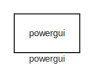
[diagram: root canvas - part 1/5, top left region]
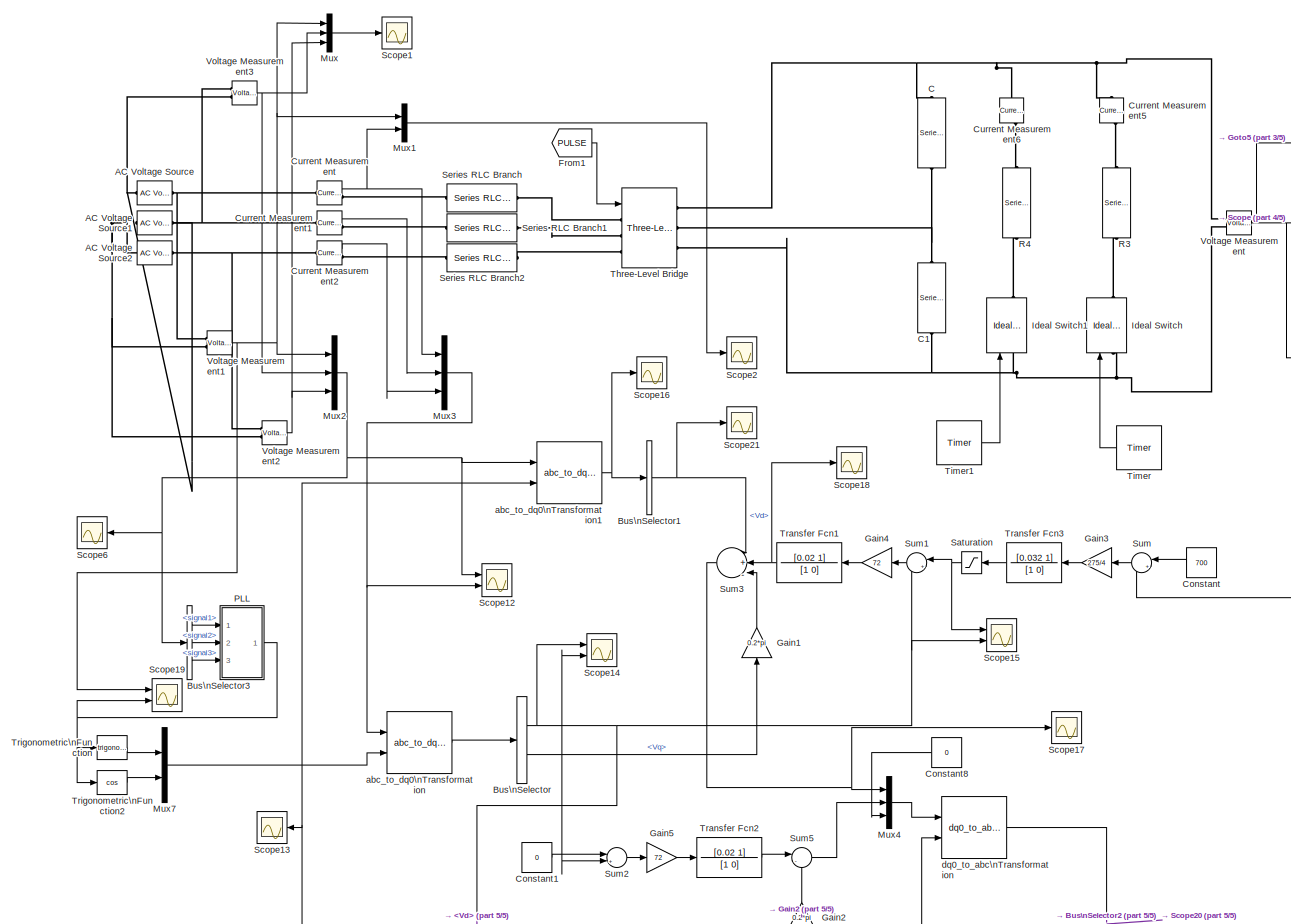
[diagram: root canvas - part 2/5, full width, middle band]
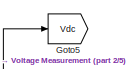
[diagram: root canvas - part 3/5, top right region]
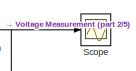
[diagram: root canvas - part 4/5, top right region]
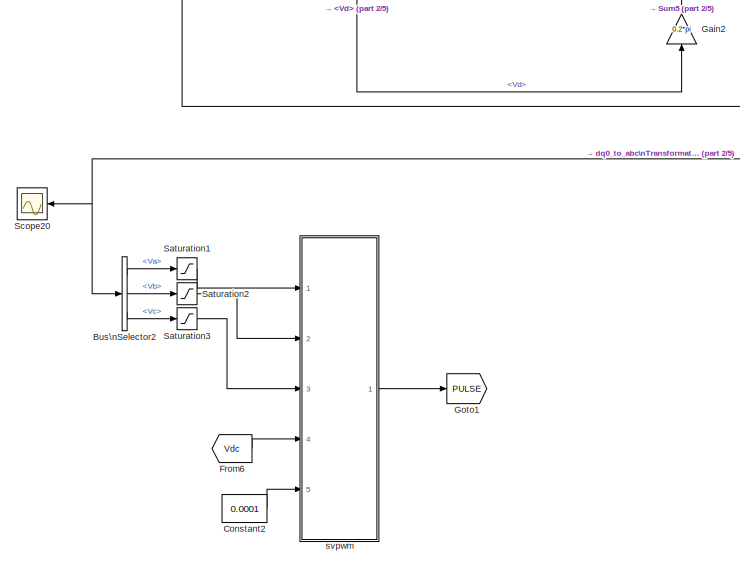
[diagram: root canvas - part 5/5, bottom center region]
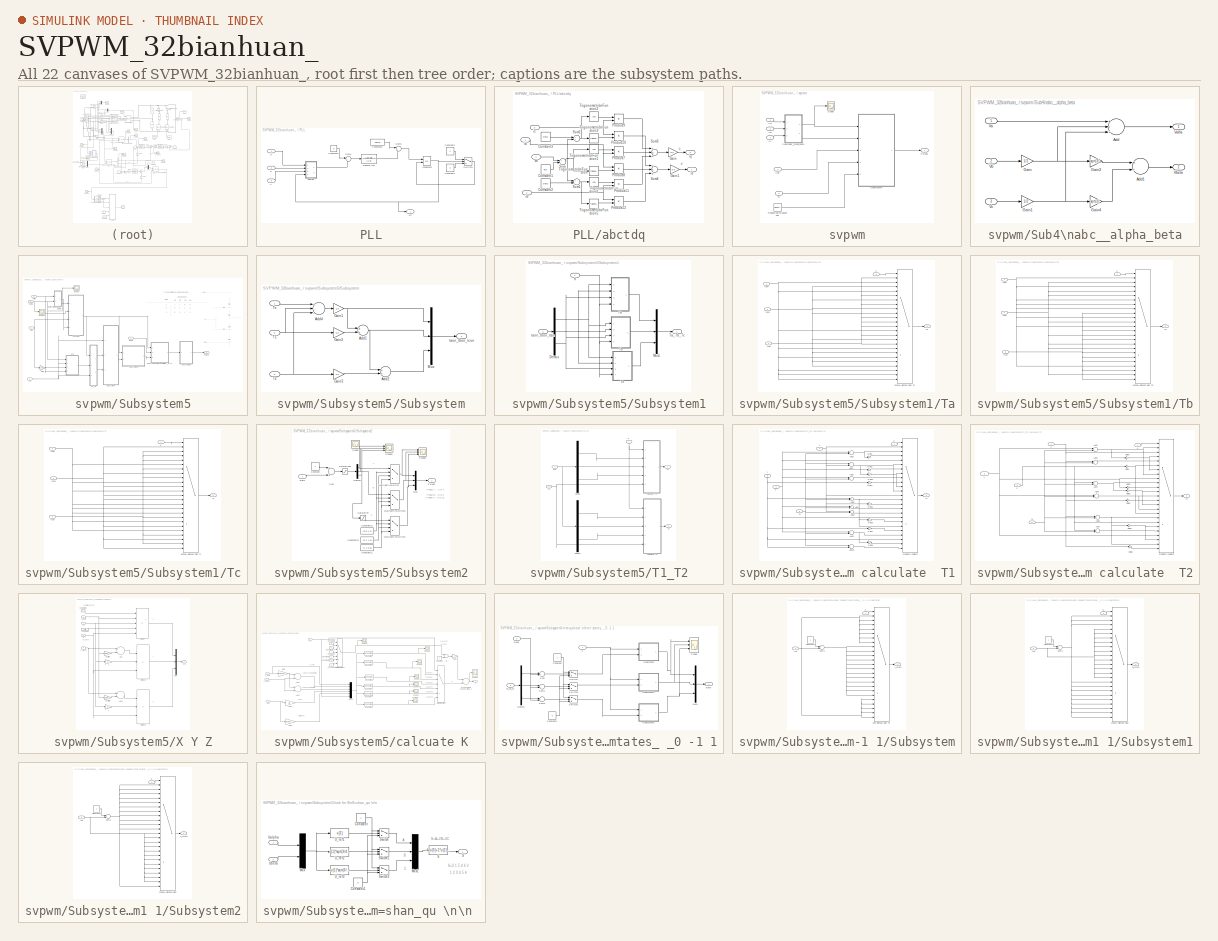
[diagram: thumbnail index - all 22 canvases of the model, root first then tree order]
MODEL SVPWM_32bianhuan_
KIND model
BLOCK [Reference] AC Voltage Source  REF=powerlib/Electrical\nSources/AC Voltage Source
  Amplitude = 311
  DialogController = POWERSYS.PowerSysDialog
  Frequency = 50
  FunctionWithSeparateData = off
  GeneratePreprocessorConditionals = off
  Measurements = None
  Phase = 90
  Ports = [0, 0, 0, 0, 0, 1, 1]
  RTWMemSecDataConstants = Inherit from model
  RTWMemSecDataInternal = Inherit from model
  RTWMemSecDataParameters = Inherit from model
  RTWMemSecFuncExecute = Inherit from model
  RTWMemSecFuncInitTerm = Inherit from model
  SID = 1
  SampleTime = 0
  ShowPortLabels = FromPortIcon
  SourceBlock = powerlib/Electrical\nSources/AC Voltage Source
  SourceType = AC Voltage Source
  SystemSampleTime = -1
BLOCK [Reference] AC Voltage Source1  REF=powerlib/Electrical\nSources/AC Voltage Source
  Amplitude = 311
  DialogController = POWERSYS.PowerSysDialog
  Frequency = 50
  FunctionWithSeparateData = off
  GeneratePreprocessorConditionals = off
  Measurements = None
  Phase = -30
  Ports = [0, 0, 0, 0, 0, 1, 1]
  RTWMemSecDataConstants = Inherit from model
  RTWMemSecDataInternal = Inherit from model
  RTWMemSecDataParameters = Inherit from model
  RTWMemSecFuncExecute = Inherit from model
  RTWMemSecFuncInitTerm = Inherit from model
  SID = 2
  SampleTime = 0
  ShowPortLabels = FromPortIcon
  SourceBlock = powerlib/Electrical\nSources/AC Voltage Source
  SourceType = AC Voltage Source
  SystemSampleTime = -1
BLOCK [Reference] AC Voltage Source2  REF=powerlib/Electrical\nSources/AC Voltage Source
  Amplitude = 311
  DialogController = POWERSYS.PowerSysDialog
  Frequency = 50
  FunctionWithSeparateData = off
  GeneratePreprocessorConditionals = off
  Measurements = None
  Phase = 210
  Ports = [0, 0, 0, 0, 0, 1, 1]
  RTWMemSecDataConstants = Inherit from model
  RTWMemSecDataInternal = Inherit from model
  RTWMemSecDataParameters = Inherit from model
  RTWMemSecFuncExecute = Inherit from model
  RTWMemSecFuncInitTerm = Inherit from model
  SID = 3
  SampleTime = 0
  ShowPortLabels = FromPortIcon
  SourceBlock = powerlib/Electrical\nSources/AC Voltage Source
  SourceType = AC Voltage Source
  SystemSampleTime = -1
BLOCK [BusSelector] Bus\nSelector
  OutputSignals = Vd,Vq
  Ports = [1, 2]
  SID = 4
BLOCK [BusSelector] Bus\nSelector1
  OutputSignals = Vd
  Ports = [1, 1]
  SID = 5
BLOCK [BusSelector] Bus\nSelector2
  OutputSignals = Va,Vb,Vc
  Ports = [1, 3]
  SID = 6
BLOCK [BusSelector] Bus\nSelector3
  OutputSignals = signal1,signal2,signal3
  Ports = [1, 3]
  SID = 7
BLOCK [Reference] C  REF=powerlib/Elements/Series RLC Branch
  BranchType = C
  Capacitance = 1e-3
  DialogController = POWERSYS.PowerSysDialog
  Inductance = 1e-3
  InitialCurrent = 0
  InitialVoltage = 0
  LConnTagsString = __new0
  LeftPortType = p1
  Measurements = None
  PhysicalDomain = powersysdomain
  Ports = [0, 0, 0, 0, 0, 1, 1]
  RConnTagsString = __new0
  Resistance = 1
  RightPortType = p1
  SID = 8
  SetiL0 = off
  Setx0 = off
  SourceBlock = powerlib/Elements/Series RLC Branch
  SourceType = Series RLC Branch
  SubClassName = unknown
BLOCK [Reference] C1  REF=powerlib/Elements/Series RLC Branch
  BranchType = C
  Capacitance = 1e-3
  DialogController = POWERSYS.PowerSysDialog
  Inductance = 1e-3
  InitialCurrent = 0
  InitialVoltage = 0
  LConnTagsString = __new0
  LeftPortType = p1
  Measurements = None
  PhysicalDomain = powersysdomain
  Ports = [0, 0, 0, 0, 0, 1, 1]
  RConnTagsString = __new0
  Resistance = 1
  RightPortType = p1
  SID = 9
  SetiL0 = off
  Setx0 = off
  SourceBlock = powerlib/Elements/Series RLC Branch
  SourceType = Series RLC Branch
  SubClassName = unknown
BLOCK [Constant] Constant
  SID = 10
  Value = 700
BLOCK [Constant] Constant1
  SID = 11
  Value = 0
BLOCK [Constant] Constant2
  SID = 12
  Value = 0.0001
BLOCK [Constant] Constant8
  SID = 13
  Value = 0
BLOCK [Reference] Current Measurement  REF=powerlib/Measurements/Current Measurement
  DialogController = POWERSYS.PowerSysDialog
  FunctionWithSeparateData = off
  GeneratePreprocessorConditionals = off
  OutputType = Complex
  PSBequivalent = 0
  PhasorSimulation = off
  Ports = [0, 1, 0, 0, 0, 1, 1]
  RTWMemSecDataConstants = Inherit from model
  RTWMemSecDataInternal = Inherit from model
  RTWMemSecDataParameters = Inherit from model
  RTWMemSecFuncExecute = Inherit from model
  RTWMemSecFuncInitTerm = Inherit from model
  SID = 14
  ShowPortLabels = FromPortIcon
  SourceBlock = powerlib/Measurements/Current Measurement
  SourceType = Current Measurement
  SystemSampleTime = -1
BLOCK [Reference] Current Measurement1  REF=powerlib/Measurements/Current Measurement
  DialogController = POWERSYS.PowerSysDialog
  FunctionWithSeparateData = off
  GeneratePreprocessorConditionals = off
  OutputType = Complex
  PSBequivalent = 0
  PhasorSimulation = off
  Ports = [0, 1, 0, 0, 0, 1, 1]
  RTWMemSecDataConstants = Inherit from model
  RTWMemSecDataInternal = Inherit from model
  RTWMemSecDataParameters = Inherit from model
  RTWMemSecFuncExecute = Inherit from model
  RTWMemSecFuncInitTerm = Inherit from model
  SID = 15
  ShowPortLabels = FromPortIcon
  SourceBlock = powerlib/Measurements/Current Measurement
  SourceType = Current Measurement
  SystemSampleTime = -1
BLOCK [Reference] Current Measurement2  REF=powerlib/Measurements/Current Measurement
  DialogController = POWERSYS.PowerSysDialog
  FunctionWithSeparateData = off
  GeneratePreprocessorConditionals = off
  OutputType = Complex
  PSBequivalent = 0
  PhasorSimulation = off
  Ports = [0, 1, 0, 0, 0, 1, 1]
  RTWMemSecDataConstants = Inherit from model
  RTWMemSecDataInternal = Inherit from model
  RTWMemSecDataParameters = Inherit from model
  RTWMemSecFuncExecute = Inherit from model
  RTWMemSecFuncInitTerm = Inherit from model
  SID = 16
  ShowPortLabels = FromPortIcon
  SourceBlock = powerlib/Measurements/Current Measurement
  SourceType = Current Measurement
  SystemSampleTime = -1
BLOCK [Reference] Current Measurement5  REF=powerlib/Measurements/Current Measurement
  DialogController = POWERSYS.PowerSysDialog
  FunctionWithSeparateData = off
  GeneratePreprocessorConditionals = off
  OutputType = Complex
  PSBequivalent = 0
  PhasorSimulation = off
  Ports = [0, 1, 0, 0, 0, 1, 1]
  RTWMemSecDataConstants = Inherit from model
  RTWMemSecDataInternal = Inherit from model
  RTWMemSecDataParameters = Inherit from model
  RTWMemSecFuncExecute = Inherit from model
  RTWMemSecFuncInitTerm = Inherit from model
  SID = 17
  ShowPortLabels = FromPortIcon
  SourceBlock = powerlib/Measurements/Current Measurement
  SourceType = Current Measurement
  SystemSampleTime = -1
BLOCK [Reference] Current Measurement6  REF=powerlib/Measurements/Current Measurement
  DialogController = POWERSYS.PowerSysDialog
  FunctionWithSeparateData = off
  GeneratePreprocessorConditionals = off
  OutputType = Complex
  PSBequivalent = 0
  PhasorSimulation = off
  Ports = [0, 1, 0, 0, 0, 1, 1]
  RTWMemSecDataConstants = Inherit from model
  RTWMemSecDataInternal = Inherit from model
  RTWMemSecDataParameters = Inherit from model
  RTWMemSecFuncExecute = Inherit from model
  RTWMemSecFuncInitTerm = Inherit from model
  SID = 18
  ShowPortLabels = FromPortIcon
  SourceBlock = powerlib/Measurements/Current Measurement
  SourceType = Current Measurement
  SystemSampleTime = -1
BLOCK [From] From1
  CloseFcn = tagdialog Close
  GotoTag = PULSE
  SID = 19
BLOCK [From] From6
  CloseFcn = tagdialog Close
  GotoTag = Vdc
  SID = 20
BLOCK [Gain] Gain1
  Gain = 0.2*pi
  OutDataTypeStr = Inherit: Inherit via internal rule
  ParamDataTypeStr = Inherit: Inherit via internal rule
  SID = 21
  SaturateOnIntegerOverflow = off
BLOCK [Gain] Gain2
  Gain = 0.2*pi
  OutDataTypeStr = Inherit: Inherit via internal rule
  ParamDataTypeStr = Inherit: Inherit via internal rule
  SID = 22
  SaturateOnIntegerOverflow = off
BLOCK [Gain] Gain3
  Gain = 275/4
  OutDataTypeStr = Inherit: Inherit via internal rule
  ParamDataTypeStr = Inherit: Inherit via internal rule
  SID = 23
  SaturateOnIntegerOverflow = off
BLOCK [Gain] Gain4
  Gain = 72
  OutDataTypeStr = Inherit: Inherit via internal rule
  ParamDataTypeStr = Inherit: Inherit via internal rule
  SID = 24
  SaturateOnIntegerOverflow = off
BLOCK [Gain] Gain5
  Gain = 72
  OutDataTypeStr = Inherit: Inherit via internal rule
  ParamDataTypeStr = Inherit: Inherit via internal rule
  SID = 25
  SaturateOnIntegerOverflow = off
BLOCK [Goto] Goto1
  GotoTag = PULSE
  SID = 26
  TagVisibility = local
BLOCK [Goto] Goto5
  GotoTag = Vdc
  SID = 27
  TagVisibility = local
BLOCK [Reference] Ideal Switch  REF=powerlib/Power\nElectronics/Ideal Switch
  Cs = inf
  DialogController = POWERSYS.PowerSysDialog
  FunctionWithSeparateData = off
  GeneratePreprocessorConditionals = off
  IC = 0
  Lon = 0
  Measurements = on
  Ports = [1, 1, 0, 0, 0, 1, 1]
  RTWMemSecDataConstants = Inherit from model
  RTWMemSecDataInternal = Inherit from model
  RTWMemSecDataParameters = Inherit from model
  RTWMemSecFuncExecute = Inherit from model
  RTWMemSecFuncInitTerm = Inherit from model
  Ron = 0.001
  Rs = 1e5
  SID = 28
  ShowPortLabels = FromPortIcon
  SourceBlock = powerlib/Power\nElectronics/Ideal Switch
  SourceType = Ideal Switch
  SystemSampleTime = -1
BLOCK [Reference] Ideal Switch1  REF=powerlib/Power\nElectronics/Ideal Switch
  Cs = inf
  DialogController = POWERSYS.PowerSysDialog
  FunctionWithSeparateData = off
  GeneratePreprocessorConditionals = off
  IC = 0
  Lon = 0
  Measurements = on
  Ports = [1, 1, 0, 0, 0, 1, 1]
  RTWMemSecDataConstants = Inherit from model
  RTWMemSecDataInternal = Inherit from model
  RTWMemSecDataParameters = Inherit from model
  RTWMemSecFuncExecute = Inherit from model
  RTWMemSecFuncInitTerm = Inherit from model
  Ron = 0.001
  Rs = 1e5
  SID = 29
  ShowPortLabels = FromPortIcon
  SourceBlock = powerlib/Power\nElectronics/Ideal Switch
  SourceType = Ideal Switch
  SystemSampleTime = -1
BLOCK [Mux] Mux
  DisplayOption = bar
  Inputs = 3
  Ports = [3, 1]
  SID = 30
BLOCK [Mux] Mux1
  DisplayOption = bar
  Inputs = 2
  Ports = [2, 1]
  SID = 31
BLOCK [Mux] Mux2
  DisplayOption = bar
  Inputs = 3
  Ports = [3, 1]
  SID = 32
BLOCK [Mux] Mux3
  DisplayOption = bar
  Inputs = 3
  Ports = [3, 1]
  SID = 33
BLOCK [Mux] Mux4
  DisplayOption = bar
  Inputs = 3
  Ports = [3, 1]
  SID = 34
BLOCK [Mux] Mux7
  DisplayOption = bar
  Inputs = 2
  Ports = [2, 1]
  SID = 35
BLOCK [SubSystem] PLL
  FunctionWithSeparateData = off
  MaskHideContents = off
  MinAlgLoopOccurrences = off
  Opaque = off
  Ports = [3, 1]
  PropExecContextOutsideSubsystem = off
  RTWSystemCode = Auto
  RequestExecContextInheritance = off
  SID = 36
BLOCK [Constant] PLL/Constant3
  SID = 40
BLOCK [Constant] PLL/Constant4
  SID = 41
  Value = 0
BLOCK [Constant] PLL/Constant5
  SID = 42
  Value = 0
BLOCK [Constant] PLL/Constant6
  SID = 43
  Value = 100*pi
BLOCK [Integrator] PLL/Integrator
  ExternalReset = rising
  Ports = [2, 1]
  SID = 44
BLOCK [Sum] PLL/Sum4
  IconShape = round
  InputSameDT = off
  Inputs = |+-
  OutDataTypeStr = Inherit: Inherit via internal rule
  Ports = [2, 1]
  SID = 45
  SaturateOnIntegerOverflow = off
BLOCK [Sum] PLL/Sum5
  IconShape = round
  InputSameDT = off
  Inputs = |++
  OutDataTypeStr = Inherit: Inherit via internal rule
  Ports = [2, 1]
  SID = 46
  SaturateOnIntegerOverflow = off
BLOCK [Switch] PLL/Switch3
  InputSameDT = off
  SID = 47
  SaturateOnIntegerOverflow = off
  Threshold = 2*pi
BLOCK [TransferFcn] PLL/Transfer Fcn
  Denominator = [1 0]
  Numerator = [10 10]
  SID = 48
BLOCK [Inport] PLL/a
  IconDisplay = Port number
  SID = 37
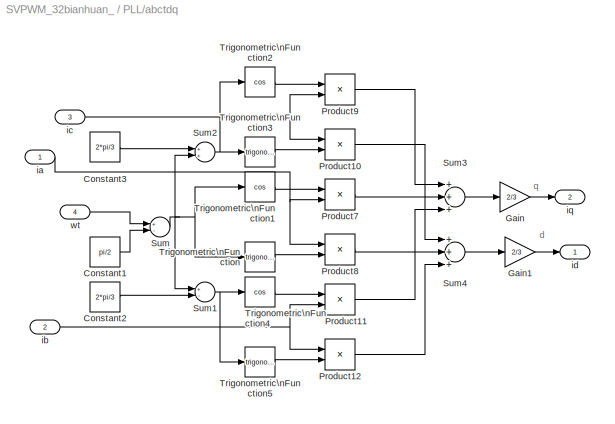
BLOCK [SubSystem] PLL/abctdq
  FunctionWithSeparateData = off
  MaskHideContents = off
  MinAlgLoopOccurrences = off
  Opaque = off
  Ports = [4, 2]
  PropExecContextOutsideSubsystem = off
  RTWSystemCode = Auto
  RequestExecContextInheritance = off
  SID = 49
BLOCK [Constant] PLL/abctdq/Constant1
  SID = 54
  Value = pi/2
BLOCK [Constant] PLL/abctdq/Constant2
  SID = 55
  Value = 2*pi/3
BLOCK [Constant] PLL/abctdq/Constant3
  SID = 56
  Value = 2*pi/3
BLOCK [Gain] PLL/abctdq/Gain
  Gain = 2/3
  OutDataTypeStr = Inherit: Inherit via internal rule
  ParamDataTypeStr = Inherit: Inherit via internal rule
  SID = 57
  SaturateOnIntegerOverflow = off
BLOCK [Gain] PLL/abctdq/Gain1
  Gain = 2/3
  OutDataTypeStr = Inherit: Inherit via internal rule
  ParamDataTypeStr = Inherit: Inherit via internal rule
  SID = 58
  SaturateOnIntegerOverflow = off
BLOCK [Product] PLL/abctdq/Product10
  InputSameDT = off
  OutDataTypeStr = Inherit: Inherit via internal rule
  Ports = [2, 1]
  SID = 59
  SaturateOnIntegerOverflow = off
BLOCK [Product] PLL/abctdq/Product11
  InputSameDT = off
  OutDataTypeStr = Inherit: Inherit via internal rule
  Ports = [2, 1]
  SID = 60
  SaturateOnIntegerOverflow = off
BLOCK [Product] PLL/abctdq/Product12
  InputSameDT = off
  OutDataTypeStr = Inherit: Inherit via internal rule
  Ports = [2, 1]
  SID = 61
  SaturateOnIntegerOverflow = off
BLOCK [Product] PLL/abctdq/Product7
  InputSameDT = off
  OutDataTypeStr = Inherit: Inherit via internal rule
  Ports = [2, 1]
  SID = 62
  SaturateOnIntegerOverflow = off
BLOCK [Product] PLL/abctdq/Product8
  InputSameDT = off
  OutDataTypeStr = Inherit: Inherit via internal rule
  Ports = [2, 1]
  SID = 63
  SaturateOnIntegerOverflow = off
BLOCK [Product] PLL/abctdq/Product9
  InputSameDT = off
  OutDataTypeStr = Inherit: Inherit via internal rule
  Ports = [2, 1]
  SID = 64
  SaturateOnIntegerOverflow = off
BLOCK [Sum] PLL/abctdq/Sum
  InputSameDT = off
  Inputs = +-
  OutDataTypeStr = Inherit: Inherit via internal rule
  Ports = [2, 1]
  SID = 65
  SaturateOnIntegerOverflow = off
BLOCK [Sum] PLL/abctdq/Sum1
  InputSameDT = off
  Inputs = +-
  OutDataTypeStr = Inherit: Inherit via internal rule
  Ports = [2, 1]
  SID = 66
  SaturateOnIntegerOverflow = off
BLOCK [Sum] PLL/abctdq/Sum2
  InputSameDT = off
  OutDataTypeStr = Inherit: Inherit via internal rule
  Ports = [2, 1]
  SID = 67
  SaturateOnIntegerOverflow = off
BLOCK [Sum] PLL/abctdq/Sum3
  InputSameDT = off
  Inputs = +++
  OutDataTypeStr = Inherit: Inherit via internal rule
  Ports = [3, 1]
  SID = 68
  SaturateOnIntegerOverflow = off
BLOCK [Sum] PLL/abctdq/Sum4
  InputSameDT = off
  Inputs = +++
  OutDataTypeStr = Inherit: Inherit via internal rule
  Ports = [3, 1]
  SID = 69
  SaturateOnIntegerOverflow = off
BLOCK [Trigonometry] PLL/abctdq/Trigonometric\nFunction
  Ports = [1, 1]
  SID = 70
BLOCK [Trigonometry] PLL/abctdq/Trigonometric\nFunction1
  Operator = cos
  Ports = [1, 1]
  SID = 71
BLOCK [Trigonometry] PLL/abctdq/Trigonometric\nFunction2
  Operator = cos
  Ports = [1, 1]
  SID = 72
BLOCK [Trigonometry] PLL/abctdq/Trigonometric\nFunction3
  Ports = [1, 1]
  SID = 73
BLOCK [Trigonometry] PLL/abctdq/Trigonometric\nFunction4
  Operator = cos
  Ports = [1, 1]
  SID = 74
BLOCK [Trigonometry] PLL/abctdq/Trigonometric\nFunction5
  Ports = [1, 1]
  SID = 75
BLOCK [Inport] PLL/abctdq/ia
  IconDisplay = Port number
  SID = 50
BLOCK [Inport] PLL/abctdq/ib
  IconDisplay = Port number
  Port = 2
  SID = 51
BLOCK [Inport] PLL/abctdq/ic
  IconDisplay = Port number
  Port = 3
  SID = 52
BLOCK [Outport] PLL/abctdq/id
  IconDisplay = Port number
  SID = 76
BLOCK [Outport] PLL/abctdq/iq
  IconDisplay = Port number
  Port = 2
  SID = 77
BLOCK [Inport] PLL/abctdq/wt
  IconDisplay = Port number
  Port = 4
  SID = 53
BLOCK [Inport] PLL/b
  IconDisplay = Port number
  Port = 2
  SID = 38
BLOCK [Inport] PLL/c
  IconDisplay = Port number
  Port = 3
  SID = 39
BLOCK [Outport] PLL/wt
  IconDisplay = Port number
  SID = 78
BLOCK [Reference] R3  REF=powerlib/Elements/Series RLC Branch
  BranchType = R
  Capacitance = 1e-6
  DialogController = POWERSYS.PowerSysDialog
  Inductance = 1e-3
  InitialCurrent = 0
  InitialVoltage = 0
  LConnTagsString = __new0
  LeftPortType = p1
  Measurements = None
  PhysicalDomain = powersysdomain
  Ports = [0, 0, 0, 0, 0, 1, 1]
  RConnTagsString = __new0
  Resistance = 100
  RightPortType = p1
  SID = 79
  SetiL0 = off
  Setx0 = off
  SourceBlock = powerlib/Elements/Series RLC Branch
  SourceType = Series RLC Branch
  SubClassName = unknown
BLOCK [Reference] R4  REF=powerlib/Elements/Series RLC Branch
  BranchType = R
  Capacitance = 1e-6
  DialogController = POWERSYS.PowerSysDialog
  Inductance = 1e-3
  InitialCurrent = 0
  InitialVoltage = 0
  LConnTagsString = __new0
  LeftPortType = p1
  Measurements = None
  PhysicalDomain = powersysdomain
  Ports = [0, 0, 0, 0, 0, 1, 1]
  RConnTagsString = __new0
  Resistance = 50
  RightPortType = p1
  SID = 80
  SetiL0 = off
  Setx0 = off
  SourceBlock = powerlib/Elements/Series RLC Branch
  SourceType = Series RLC Branch
  SubClassName = unknown
BLOCK [Saturate] Saturation
  InputPortMap = u0
  LowerLimit = -200
  Ports = [1, 1]
  SID = 81
  UpperLimit = 200
BLOCK [Saturate] Saturation1
  InputPortMap = u0
  LowerLimit = -220
  Ports = [1, 1]
  SID = 82
  UpperLimit = 220
BLOCK [Saturate] Saturation2
  InputPortMap = u0
  LowerLimit = -220
  Ports = [1, 1]
  SID = 83
  UpperLimit = 220
BLOCK [Saturate] Saturation3
  InputPortMap = u0
  LowerLimit = -220
  Ports = [1, 1]
  SID = 84
  UpperLimit = 220
BLOCK [Scope] Scope
  DataFormat = StructureWithTime
  Floating = off
  LimitDataPoints = off
  NumInputPorts = 1
  Ports = [1]
  SID = 85
  SampleTime = 0
  TimeRange = 0.5
  YMax = 707
  YMin = 698.5
  ZoomMode = yonly
BLOCK [Scope] Scope1
  DataFormat = StructureWithTime
  Floating = off
  LimitDataPoints = off
  NumInputPorts = 1
  Ports = [1]
  SID = 86
  SampleTime = 0
  SaveName = ScopeData1
  YMax = 400
  YMin = -400
  ZoomMode = xonly
BLOCK [Scope] Scope12
  DataFormat = StructureWithTime
  Floating = off
  LimitDataPoints = off
  NumInputPorts = 2
  Ports = [2]
  SID = 87
  SampleTime = 0
  SaveName = ScopeData12
  YMax = 4~5
  YMin = -4~-5
  ZoomMode = xonly
BLOCK [Scope] Scope13
  DataFormat = StructureWithTime
  Floating = off
  LimitDataPoints = off
  NumInputPorts = 1
  Ports = [1]
  SID = 88
  SampleTime = 0
  SaveName = ScopeData13
  YMax = 0.6
  YMin = -1
  ZoomMode = xonly
BLOCK [Scope] Scope14
  DataFormat = StructureWithTime
  Floating = off
  LimitDataPoints = off
  NumInputPorts = 2
  Ports = [2]
  SID = 89
  SampleTime = 0
  SaveName = ScopeData14
  YMax = 26~3.25
  YMin = 15~-2.25
  ZoomMode = yonly
BLOCK [Scope] Scope15
  DataFormat = StructureWithTime
  Floating = off
  LimitDataPoints = off
  NumInputPorts = 2
  Ports = [2]
  SID = 90
  SampleTime = 0
  SaveName = ScopeData15
  YMax = -503.425~1
  YMin = -503.7~-1
  ZoomMode = yonly
BLOCK [Scope] Scope16
  DataFormat = StructureWithTime
  Floating = off
  LimitDataPoints = off
  NumInputPorts = 1
  Ports = [1]
  SID = 91
  SampleTime = 0
  SaveName = ScopeData16
  YMax = 325
  YMin = -25
  ZoomMode = xonly
BLOCK [Scope] Scope17
  DataFormat = StructureWithTime
  Floating = off
  LimitDataPoints = off
  NumInputPorts = 1
  Ports = [1]
  SID = 92
  SampleTime = 0
  SaveName = ScopeData17
  YMax = 22150
  YMin = 21050
BLOCK [Scope] Scope18
  DataFormat = StructureWithTime
  Floating = off
  LimitDataPoints = off
  NumInputPorts = 1
  Ports = [1]
  SID = 93
  SampleTime = 0
  SaveName = ScopeData18
  YMax = -20425
  YMin = -20775
  ZoomMode = xonly
BLOCK [Scope] Scope19
  DataFormat = StructureWithTime
  Floating = off
  LimitDataPoints = off
  NumInputPorts = 2
  Ports = [2]
  SID = 94
  SampleTime = 0
  SaveName = ScopeData19
  YMax = 6.5~5
  YMin = 0~-5
  ZoomMode = xonly
BLOCK [Scope] Scope2
  DataFormat = StructureWithTime
  Floating = off
  LimitDataPoints = off
  NumInputPorts = 1
  Ports = [1]
  SID = 95
  SampleTime = 0
  SaveName = ScopeData2
  YMax = 350
  YMin = -350
  ZoomMode = xonly
BLOCK [Scope] Scope20
  DataFormat = StructureWithTime
  Floating = off
  LimitDataPoints = off
  NumInputPorts = 1
  Ports = [1]
  SID = 96
  SampleTime = 0
  SaveName = ScopeData20
  YMax = 1
  YMin = -1
  ZoomMode = xonly
BLOCK [Scope] Scope21
  DataFormat = StructureWithTime
  Floating = off
  LimitDataPoints = off
  NumInputPorts = 1
  Ports = [1]
  SID = 97
  SampleTime = 0
  SaveName = ScopeData21
  YMax = 311
  YMin = 311
  ZoomMode = xonly
BLOCK [Scope] Scope6
  DataFormat = StructureWithTime
  Floating = off
  LimitDataPoints = off
  NumInputPorts = 1
  Ports = [1]
  SID = 98
  SampleTime = 0
  SaveName = ScopeData6
  YMax = 400
  YMin = -400
  ZoomMode = xonly
BLOCK [Reference] Series RLC Branch  REF=powerlib/Elements/Series RLC Branch
  BranchType = RL
  Capacitance = 1e-6
  DialogController = POWERSYS.PowerSysDialog
  Inductance = 2e-3
  InitialCurrent = 0
  InitialVoltage = 0
  LConnTagsString = __new0
  LeftPortType = p1
  Measurements = None
  PhysicalDomain = powersysdomain
  Ports = [0, 0, 0, 0, 0, 1, 1]
  RConnTagsString = __new0
  Resistance = 0.1
  RightPortType = p1
  SID = 99
  SetiL0 = off
  Setx0 = off
  SourceBlock = powerlib/Elements/Series RLC Branch
  SourceType = Series RLC Branch
  SubClassName = unknown
BLOCK [Reference] Series RLC Branch1  REF=powerlib/Elements/Series RLC Branch
  BranchType = RL
  Capacitance = 1e-6
  DialogController = POWERSYS.PowerSysDialog
  Inductance = 2e-3
  InitialCurrent = 0
  InitialVoltage = 0
  LConnTagsString = __new0
  LeftPortType = p1
  Measurements = None
  PhysicalDomain = powersysdomain
  Ports = [0, 0, 0, 0, 0, 1, 1]
  RConnTagsString = __new0
  Resistance = 0.1
  RightPortType = p1
  SID = 100
  SetiL0 = off
  Setx0 = off
  SourceBlock = powerlib/Elements/Series RLC Branch
  SourceType = Series RLC Branch
  SubClassName = unknown
BLOCK [Reference] Series RLC Branch2  REF=powerlib/Elements/Series RLC Branch
  BranchType = RL
  Capacitance = 1e-6
  DialogController = POWERSYS.PowerSysDialog
  Inductance = 2e-3
  InitialCurrent = 0
  InitialVoltage = 0
  LConnTagsString = __new0
  LeftPortType = p1
  Measurements = None
  PhysicalDomain = powersysdomain
  Ports = [0, 0, 0, 0, 0, 1, 1]
  RConnTagsString = __new0
  Resistance = 0.1
  RightPortType = p1
  SID = 101
  SetiL0 = off
  Setx0 = off
  SourceBlock = powerlib/Elements/Series RLC Branch
  SourceType = Series RLC Branch
  SubClassName = unknown
BLOCK [Sum] Sum
  IconShape = round
  InputSameDT = off
  Inputs = |+-
  OutDataTypeStr = Inherit: Inherit via internal rule
  Ports = [2, 1]
  SID = 102
  SaturateOnIntegerOverflow = off
BLOCK [Sum] Sum1
  IconShape = round
  InputSameDT = off
  Inputs = |+-
  OutDataTypeStr = Inherit: Inherit via internal rule
  Ports = [2, 1]
  SID = 103
  SaturateOnIntegerOverflow = off
BLOCK [Sum] Sum2
  IconShape = round
  InputSameDT = off
  Inputs = |+-
  OutDataTypeStr = Inherit: Inherit via internal rule
  Ports = [2, 1]
  SID = 104
  SaturateOnIntegerOverflow = off
BLOCK [Sum] Sum3
  IconShape = round
  InputSameDT = off
  Inputs = |+|-|+|
  OutDataTypeStr = Inherit: Inherit via internal rule
  Ports = [3, 1]
  SID = 105
  SaturateOnIntegerOverflow = off
BLOCK [Sum] Sum5
  IconShape = round
  InputSameDT = off
  Inputs = |-+
  OutDataTypeStr = Inherit: Inherit via internal rule
  Ports = [2, 1]
  SID = 106
  SaturateOnIntegerOverflow = off
BLOCK [Reference] Three-Level Bridge  REF=powerlib/Power\nElectronics/Three-Level Bridge
  Arms = 3
  Device = IGBT / Diodes
  DialogController = POWERSYS.PowerSysDialog
  ForwardVoltages = [  0  0  ]
  FunctionWithSeparateData = off
  GeneratePreprocessorConditionals = off
  Measurements = None
  Ports = [1, 0, 0, 0, 0, 3, 3]
  RTWMemSecDataConstants = Inherit from model
  RTWMemSecDataInternal = Inherit from model
  RTWMemSecDataParameters = Inherit from model
  RTWMemSecFuncExecute = Inherit from model
  RTWMemSecFuncInitTerm = Inherit from model
  Ron = 1e-3
  SID = 107
  SbubberCapacitance = inf
  ShowPortLabels = FromPortIcon
  SnubberResistance = 1e5
  SourceBlock = powerlib/Power\nElectronics/Three-Level Bridge
  SourceType = Three-Level Bridge
  SystemSampleTime = -1
BLOCK [Reference] Timer  REF=powerlib_extras/Control \nBlocks/Timer
  DialogController = POWERSYS.PowerSysDialog
  FunctionWithSeparateData = off
  GeneratePreprocessorConditionals = off
  Ports = [0, 1]
  RTWMemSecDataConstants = Inherit from model
  RTWMemSecDataInternal = Inherit from model
  RTWMemSecDataParameters = Inherit from model
  RTWMemSecFuncExecute = Inherit from model
  RTWMemSecFuncInitTerm = Inherit from model
  SID = 108
  ShowPortLabels = FromPortIcon
  SourceBlock = powerlib_extras/Control \nBlocks/Timer
  SourceType = Timer
  SystemSampleTime = -1
  e = [0 1]
  t = [0 0.3]
BLOCK [Reference] Timer1  REF=powerlib_extras/Control \nBlocks/Timer
  DialogController = POWERSYS.PowerSysDialog
  FunctionWithSeparateData = off
  GeneratePreprocessorConditionals = off
  Ports = [0, 1]
  RTWMemSecDataConstants = Inherit from model
  RTWMemSecDataInternal = Inherit from model
  RTWMemSecDataParameters = Inherit from model
  RTWMemSecFuncExecute = Inherit from model
  RTWMemSecFuncInitTerm = Inherit from model
  SID = 109
  ShowPortLabels = FromPortIcon
  SourceBlock = powerlib_extras/Control \nBlocks/Timer
  SourceType = Timer
  SystemSampleTime = -1
  e = [1 0]
  t = [0 0.3]
BLOCK [TransferFcn] Transfer Fcn1
  Denominator = [1 0]
  Numerator = [0.02 1]
  SID = 110
BLOCK [TransferFcn] Transfer Fcn2
  Denominator = [1 0]
  Numerator = [0.02 1]
  SID = 111
BLOCK [TransferFcn] Transfer Fcn3
  Denominator = [1 0]
  Numerator = [0.032 1]
  SID = 112
BLOCK [Trigonometry] Trigonometric\nFunction
  Ports = [1, 1]
  SID = 113
BLOCK [Trigonometry] Trigonometric\nFunction2
  Operator = cos
  Ports = [1, 1]
  SID = 114
BLOCK [Reference] Voltage Measurement  REF=powerlib/Measurements/Voltage Measurement
  DialogController = POWERSYS.PowerSysDialog
  FunctionWithSeparateData = off
  GeneratePreprocessorConditionals = off
  OutputType = Complex
  PSBequivalent = 0
  PhasorSimulation = off
  Ports = [0, 1, 0, 0, 0, 2]
  RTWMemSecDataConstants = Inherit from model
  RTWMemSecDataInternal = Inherit from model
  RTWMemSecDataParameters = Inherit from model
  RTWMemSecFuncExecute = Inherit from model
  RTWMemSecFuncInitTerm = Inherit from model
  SID = 115
  ShowPortLabels = FromPortIcon
  SourceBlock = powerlib/Measurements/Voltage Measurement
  SourceType = Voltage Measurement
  SystemSampleTime = -1
BLOCK [Reference] Voltage Measurement1  REF=powerlib/Measurements/Voltage Measurement
  DialogController = POWERSYS.PowerSysDialog
  FunctionWithSeparateData = off
  GeneratePreprocessorConditionals = off
  OutputType = Complex
  PSBequivalent = 0
  PhasorSimulation = off
  Ports = [0, 1, 0, 0, 0, 2]
  RTWMemSecDataConstants = Inherit from model
  RTWMemSecDataInternal = Inherit from model
  RTWMemSecDataParameters = Inherit from model
  RTWMemSecFuncExecute = Inherit from model
  RTWMemSecFuncInitTerm = Inherit from model
  SID = 116
  ShowPortLabels = FromPortIcon
  SourceBlock = powerlib/Measurements/Voltage Measurement
  SourceType = Voltage Measurement
  SystemSampleTime = -1
BLOCK [Reference] Voltage Measurement2  REF=powerlib/Measurements/Voltage Measurement
  DialogController = POWERSYS.PowerSysDialog
  FunctionWithSeparateData = off
  GeneratePreprocessorConditionals = off
  OutputType = Complex
  PSBequivalent = 0
  PhasorSimulation = off
  Ports = [0, 1, 0, 0, 0, 2]
  RTWMemSecDataConstants = Inherit from model
  RTWMemSecDataInternal = Inherit from model
  RTWMemSecDataParameters = Inherit from model
  RTWMemSecFuncExecute = Inherit from model
  RTWMemSecFuncInitTerm = Inherit from model
  SID = 117
  ShowPortLabels = FromPortIcon
  SourceBlock = powerlib/Measurements/Voltage Measurement
  SourceType = Voltage Measurement
  SystemSampleTime = -1
BLOCK [Reference] Voltage Measurement3  REF=powerlib/Measurements/Voltage Measurement
  DialogController = POWERSYS.PowerSysDialog
  FunctionWithSeparateData = off
  GeneratePreprocessorConditionals = off
  OutputType = Complex
  PSBequivalent = 0
  PhasorSimulation = off
  Ports = [0, 1, 0, 0, 0, 2]
  RTWMemSecDataConstants = Inherit from model
  RTWMemSecDataInternal = Inherit from model
  RTWMemSecDataParameters = Inherit from model
  RTWMemSecFuncExecute = Inherit from model
  RTWMemSecFuncInitTerm = Inherit from model
  SID = 118
  ShowPortLabels = FromPortIcon
  SourceBlock = powerlib/Measurements/Voltage Measurement
  SourceType = Voltage Measurement
  SystemSampleTime = -1
BLOCK [Reference] abc_to_dq0\nTransformation  REF=powerlib_extras/Measurements/abc_to_dq0\nTransformation
  DialogController = POWERSYS.PowerSysDialog
  FunctionWithSeparateData = off
  GeneratePreprocessorConditionals = off
  Ports = [2, 1]
  RTWMemSecDataConstants = Inherit from model
  RTWMemSecDataInternal = Inherit from model
  RTWMemSecDataParameters = Inherit from model
  RTWMemSecFuncExecute = Inherit from model
  RTWMemSecFuncInitTerm = Inherit from model
  SID = 119
  ShowPortLabels = FromPortIcon
  SourceBlock = powerlib_extras/Measurements/abc_to_dq0\nTransformation
  SourceType = abc to dq0 Transformation
  SystemSampleTime = -1
BLOCK [Reference] abc_to_dq0\nTransformation1  REF=powerlib_extras/Measurements/abc_to_dq0\nTransformation
  DialogController = POWERSYS.PowerSysDialog
  FunctionWithSeparateData = off
  GeneratePreprocessorConditionals = off
  Ports = [2, 1]
  RTWMemSecDataConstants = Inherit from model
  RTWMemSecDataInternal = Inherit from model
  RTWMemSecDataParameters = Inherit from model
  RTWMemSecFuncExecute = Inherit from model
  RTWMemSecFuncInitTerm = Inherit from model
  SID = 120
  ShowPortLabels = FromPortIcon
  SourceBlock = powerlib_extras/Measurements/abc_to_dq0\nTransformation
  SourceType = abc to dq0 Transformation
  SystemSampleTime = -1
BLOCK [Reference] dq0_to_abc\nTransformation  REF=powerlib_extras/Measurements/dq0_to_abc\nTransformation
  DialogController = POWERSYS.PowerSysDialog
  FunctionWithSeparateData = off
  GeneratePreprocessorConditionals = off
  Ports = [2, 1]
  RTWMemSecDataConstants = Inherit from model
  RTWMemSecDataInternal = Inherit from model
  RTWMemSecDataParameters = Inherit from model
  RTWMemSecFuncExecute = Inherit from model
  RTWMemSecFuncInitTerm = Inherit from model
  SID = 121
  ShowPortLabels = FromPortIcon
  SourceBlock = powerlib_extras/Measurements/dq0_to_abc\nTransformation
  SourceType = dq0 to abc Transformation
  SystemSampleTime = -1
BLOCK [Reference] powergui  REF=powerlib/powergui
  DisableRonSwitches = off
  DisableSnubberDevices = off
  DisableVfSwitches = off
  DisplayEquations = off
  DisplayStyle = 1
  EnableUseOfTLC = off
  Frange = [0:2:500]
  FreqAxis = off
  FunctionMessages = off
  FunctionWithSeparateData = off
  GeneratePreprocessorConditionals = off
  HookPort = off
  Interpol = off
  MaxFrequency = 1000
  Ports = []
  Priority = 1
  RTWMemSecDataConstants = Inherit from model
  RTWMemSecDataInternal = Inherit from model
  RTWMemSecDataParameters = Inherit from model
  RTWMemSecFuncExecute = Inherit from model
  RTWMemSecFuncInitTerm = Inherit from model
  ResistiveCurrentMeasurement = off
  RestoreLinks = warning
  RmsSteady = 1
  SID = 122
  SPID = off
  SampleTime = 50e-6
  ShowGrid = off
  ShowPortLabels = FromPortIcon
  SourceBlock = powerlib/powergui
  SourceType = PSB option menu block
  StartTime = 0.0
  SwTol = 0
  SystemSampleTime = -1
  Ts = 0
  UserData = DataTag0
  UserDataPersistent = on
  Xlog = on
  Ylog = off
  ZoomFFT = off
  cycles = 1
  display = off
  echomessages = off
  frequency = 60
  frequencyindice = 50
  frequencyindicesteady = 1
  fundamental = 60
  methode = off
  save = off
  variable = ZData
  x0status = blocks
BLOCK [SubSystem] svpwm
  FunctionWithSeparateData = off
  MaskHideContents = off
  MinAlgLoopOccurrences = off
  Opaque = off
  Ports = [5, 1]
  PropExecContextOutsideSubsystem = off
  RTWSystemCode = Auto
  RequestExecContextInheritance = off
  SID = 123
BLOCK [Outport] svpwm/Pulses
  IconDisplay = Port number
  SID = 371
BLOCK [Reference] svpwm/Repeating\nSequence1  REF=simulink/Sources/Repeating\nSequence
  FunctionWithSeparateData = off
  GeneratePreprocessorConditionals = off
  Ports = [0, 1]
  RTWMemSecDataConstants = Inherit from model
  RTWMemSecDataInternal = Inherit from model
  RTWMemSecDataParameters = Inherit from model
  RTWMemSecFuncExecute = Inherit from model
  RTWMemSecFuncInitTerm = Inherit from model
  SID = 129
  ShowPortLabels = FromPortIcon
  SourceBlock = simulink/Sources/Repeating\nSequence
  SourceType = Repeating table
  SystemSampleTime = -1
  rep_seq_t = [0 0.00005 0.0001]
  rep_seq_y = [0 0.00005 0]
BLOCK [Scope] svpwm/Scope
  DataFormat = StructureWithTime
  Floating = off
  LimitDataPoints = off
  NumInputPorts = 1
  Ports = [1]
  SID = 130
  SampleTime = 0
  SaveName = ScopeData7
  ZoomMode = yonly
BLOCK [SubSystem] svpwm/Sub4\nabc__alpha_beta
  FunctionWithSeparateData = off
  MaskHideContents = off
  MinAlgLoopOccurrences = off
  Opaque = off
  Ports = [3, 2]
  PropExecContextOutsideSubsystem = off
  RTWSystemCode = Auto
  RequestExecContextInheritance = off
  SID = 131
BLOCK [Sum] svpwm/Sub4\nabc__alpha_beta/Add
  InputSameDT = off
  Inputs = +--
  OutDataTypeStr = Inherit: Inherit via internal rule
  Ports = [3, 1]
  SID = 135
  SaturateOnIntegerOverflow = off
BLOCK [Sum] svpwm/Sub4\nabc__alpha_beta/Add1
  InputSameDT = off
  Inputs = +-
  OutDataTypeStr = Inherit: Inherit via internal rule
  Ports = [2, 1]
  SID = 136
  SaturateOnIntegerOverflow = off
BLOCK [Gain] svpwm/Sub4\nabc__alpha_beta/Gain
  Gain = 1/2
  OutDataTypeStr = Inherit: Inherit via internal rule
  ParamDataTypeStr = Inherit: Inherit via internal rule
  SID = 137
  SaturateOnIntegerOverflow = off
BLOCK [Gain] svpwm/Sub4\nabc__alpha_beta/Gain1
  Gain = 1/2
  OutDataTypeStr = Inherit: Inherit via internal rule
  ParamDataTypeStr = Inherit: Inherit via internal rule
  SID = 138
  SaturateOnIntegerOverflow = off
BLOCK [Gain] svpwm/Sub4\nabc__alpha_beta/Gain3
  Gain = sqrt(3)
  OutDataTypeStr = Inherit: Inherit via internal rule
  ParamDataTypeStr = Inherit: Inherit via internal rule
  SID = 139
  SaturateOnIntegerOverflow = off
BLOCK [Gain] svpwm/Sub4\nabc__alpha_beta/Gain4
  Gain = sqrt(3)
  OutDataTypeStr = Inherit: Inherit via internal rule
  ParamDataTypeStr = Inherit: Inherit via internal rule
  SID = 140
  SaturateOnIntegerOverflow = off
BLOCK [Inport] svpwm/Sub4\nabc__alpha_beta/Va
  IconDisplay = Port number
  SID = 132
BLOCK [Outport] svpwm/Sub4\nabc__alpha_beta/Valfa
  IconDisplay = Port number
  SID = 141
BLOCK [Inport] svpwm/Sub4\nabc__alpha_beta/Vb
  IconDisplay = Port number
  Port = 2
  SID = 133
BLOCK [Outport] svpwm/Sub4\nabc__alpha_beta/Vbeta
  IconDisplay = Port number
  Port = 2
  SID = 142
BLOCK [Inport] svpwm/Sub4\nabc__alpha_beta/Vc
  IconDisplay = Port number
  Port = 3
  SID = 134
BLOCK [SubSystem] svpwm/Subsystem5
  FunctionWithSeparateData = off
  MaskHideContents = off
  MinAlgLoopOccurrences = off
  Opaque = off
  Ports = [5, 1]
  PropExecContextOutsideSubsystem = off
  RTWSystemCode = Auto
  RequestExecContextInheritance = off
  SID = 143
BLOCK [Gain] svpwm/Subsystem5/Gain
  Gain = 2/3
  OutDataTypeStr = Inherit: Inherit via internal rule
  ParamDataTypeStr = Inherit: Inherit via internal rule
  SID = 149
  SaturateOnIntegerOverflow = off
BLOCK [Outport] svpwm/Subsystem5/Pulses
  IconDisplay = Port number
  SID = 370
BLOCK [Scope] svpwm/Subsystem5/Scope
  DataFormat = StructureWithTime
  Floating = off
  LimitDataPoints = off
  NumInputPorts = 1
  Ports = [1]
  SID = 150
  SampleTime = 0
  SaveName = ScopeData4
  ZoomMode = xonly
BLOCK [Scope] svpwm/Subsystem5/Scope1
  DataFormat = StructureWithTime
  Floating = off
  LimitDataPoints = off
  NumInputPorts = 1
  Ports = [1]
  SID = 151
  SampleTime = 0
  SaveName = ScopeData32
  ZoomMode = xonly
BLOCK [SubSystem] svpwm/Subsystem5/Subsystem
  FunctionWithSeparateData = off
  MaskHideContents = off
  MinAlgLoopOccurrences = off
  Opaque = off
  Ports = [3, 1]
  PropExecContextOutsideSubsystem = off
  RTWSystemCode = Auto
  RequestExecContextInheritance = off
  SID = 152
BLOCK [Sum] svpwm/Subsystem5/Subsystem/Add1
  InputSameDT = off
  OutDataTypeStr = Inherit: Inherit via internal rule
  Ports = [2, 1]
  SID = 156
  SaturateOnIntegerOverflow = off
BLOCK [Sum] svpwm/Subsystem5/Subsystem/Add2
  InputSameDT = off
  OutDataTypeStr = Inherit: Inherit via internal rule
  Ports = [2, 1]
  SID = 157
  SaturateOnIntegerOverflow = off
BLOCK [Sum] svpwm/Subsystem5/Subsystem/Add4
  InputSameDT = off
  Inputs = +--
  OutDataTypeStr = Inherit: Inherit via internal rule
  Ports = [3, 1]
  SID = 158
  SaturateOnIntegerOverflow = off
BLOCK [Gain] svpwm/Subsystem5/Subsystem/Gain1
  Gain = 1/4
  OutDataTypeStr = Inherit: Inherit via internal rule
  ParamDataTypeStr = Inherit: Inherit via internal rule
  SID = 159
  SaturateOnIntegerOverflow = off
BLOCK [Gain] svpwm/Subsystem5/Subsystem/Gain2
  Gain = 1/2
  OutDataTypeStr = Inherit: Inherit via internal rule
  ParamDataTypeStr = Inherit: Inherit via internal rule
  SID = 160
  SaturateOnIntegerOverflow = off
BLOCK [Gain] svpwm/Subsystem5/Subsystem/Gain3
  Gain = 1/2
  OutDataTypeStr = Inherit: Inherit via internal rule
  ParamDataTypeStr = Inherit: Inherit via internal rule
  SID = 161
  SaturateOnIntegerOverflow = off
BLOCK [Mux] svpwm/Subsystem5/Subsystem/Mux
  DisplayOption = bar
  Inputs = 3
  Ports = [3, 1]
  SID = 162
BLOCK [Inport] svpwm/Subsystem5/Subsystem/T1
  IconDisplay = Port number
  Port = 2
  SID = 154
BLOCK [Inport] svpwm/Subsystem5/Subsystem/T2
  IconDisplay = Port number
  Port = 3
  SID = 155
BLOCK [Inport] svpwm/Subsystem5/Subsystem/Ts
  IconDisplay = Port number
  SID = 153
BLOCK [Outport] svpwm/Subsystem5/Subsystem/taon_tbon_tcon
  IconDisplay = Port number
  SID = 163
BLOCK [SubSystem] svpwm/Subsystem5/Subsystem1
  FunctionWithSeparateData = off
  MaskHideContents = off
  MinAlgLoopOccurrences = off
  Opaque = off
  Ports = [2, 1]
  PropExecContextOutsideSubsystem = off
  RTWSystemCode = Auto
  RequestExecContextInheritance = off
  SID = 164
BLOCK [Demux] svpwm/Subsystem5/Subsystem1/Demux
  DisplayOption = bar
  Outputs = 3
  Ports = [1, 3]
  SID = 167
BLOCK [Inport] svpwm/Subsystem5/Subsystem1/K
  IconDisplay = Port number
  SID = 165
BLOCK [Mux] svpwm/Subsystem5/Subsystem1/Mux1
  DisplayOption = bar
  Inputs = 3
  Ports = [3, 1]
  SID = 168
BLOCK [SubSystem] svpwm/Subsystem5/Subsystem1/Ta
  FunctionWithSeparateData = off
  MaskHideContents = off
  MinAlgLoopOccurrences = off
  Opaque = off
  Ports = [4, 1]
  PropExecContextOutsideSubsystem = off
  RTWSystemCode = Auto
  RequestExecContextInheritance = off
  SID = 169
BLOCK [Inport] svpwm/Subsystem5/Subsystem1/Ta/K
  IconDisplay = Port number
  Port = 4
  SID = 173
BLOCK [Outport] svpwm/Subsystem5/Subsystem1/Ta/Ta
  IconDisplay = Port number
  SID = 175
BLOCK [MultiPortSwitch] svpwm/Subsystem5/Subsystem1/Ta/phaseA  qiehuan   dian Ta
  InputSameDT = off
  Inputs = 24
  Ports = [25, 1]
  SID = 174
  SaturateOnIntegerOverflow = off
  zeroidx = off
BLOCK [Inport] svpwm/Subsystem5/Subsystem1/Ta/taon
  IconDisplay = Port number
  SID = 170
BLOCK [Inport] svpwm/Subsystem5/Subsystem1/Ta/tbon
  IconDisplay = Port number
  Port = 2
  SID = 171
BLOCK [Inport] svpwm/Subsystem5/Subsystem1/Ta/tcon
  IconDisplay = Port number
  Port = 3
  SID = 172
BLOCK [Outport] svpwm/Subsystem5/Subsystem1/Ta_Tb_Tc
  IconDisplay = Port number
  SID = 190
BLOCK [SubSystem] svpwm/Subsystem5/Subsystem1/Tb
  FunctionWithSeparateData = off
  MaskHideContents = off
  MinAlgLoopOccurrences = off
  Opaque = off
  Ports = [4, 1]
  PropExecContextOutsideSubsystem = off
  RTWSystemCode = Auto
  RequestExecContextInheritance = off
  SID = 176
BLOCK [Inport] svpwm/Subsystem5/Subsystem1/Tb/K
  IconDisplay = Port number
  Port = 4
  SID = 180
BLOCK [Outport] svpwm/Subsystem5/Subsystem1/Tb/Tb
  IconDisplay = Port number
  SID = 182
BLOCK [MultiPortSwitch] svpwm/Subsystem5/Subsystem1/Tb/phaseA  qiehuan   dian Tb
  InputSameDT = off
  Inputs = 24
  Ports = [25, 1]
  SID = 181
  SaturateOnIntegerOverflow = off
  zeroidx = off
BLOCK [Inport] svpwm/Subsystem5/Subsystem1/Tb/taon
  IconDisplay = Port number
  SID = 177
BLOCK [Inport] svpwm/Subsystem5/Subsystem1/Tb/tbon
  IconDisplay = Port number
  Port = 2
  SID = 178
BLOCK [Inport] svpwm/Subsystem5/Subsystem1/Tb/tcon
  IconDisplay = Port number
  Port = 3
  SID = 179
BLOCK [SubSystem] svpwm/Subsystem5/Subsystem1/Tc
  FunctionWithSeparateData = off
  MaskHideContents = off
  MinAlgLoopOccurrences = off
  Opaque = off
  Ports = [4, 1]
  PropExecContextOutsideSubsystem = off
  RTWSystemCode = Auto
  RequestExecContextInheritance = off
  SID = 183
BLOCK [Inport] svpwm/Subsystem5/Subsystem1/Tc/K
  IconDisplay = Port number
  Port = 4
  SID = 187
BLOCK [Outport] svpwm/Subsystem5/Subsystem1/Tc/Tc
  IconDisplay = Port number
  SID = 189
BLOCK [MultiPortSwitch] svpwm/Subsystem5/Subsystem1/Tc/phaseA  qiehuan   dian Tc
  InputSameDT = off
  Inputs = 24
  Ports = [25, 1]
  SID = 188
  SaturateOnIntegerOverflow = off
  zeroidx = off
BLOCK [Inport] svpwm/Subsystem5/Subsystem1/Tc/taon
  IconDisplay = Port number
  SID = 184
BLOCK [Inport] svpwm/Subsystem5/Subsystem1/Tc/tbon
  IconDisplay = Port number
  Port = 2
  SID = 185
BLOCK [Inport] svpwm/Subsystem5/Subsystem1/Tc/tcon
  IconDisplay = Port number
  Port = 3
  SID = 186
BLOCK [Inport] svpwm/Subsystem5/Subsystem1/taon_tbon_tcon
  IconDisplay = Port number
  Port = 2
  SID = 166
BLOCK [SubSystem] svpwm/Subsystem5/Subsystem2
  FunctionWithSeparateData = off
  MaskHideContents = off
  MinAlgLoopOccurrences = off
  Opaque = off
  Ports = [1, 1]
  PropExecContextOutsideSubsystem = off
  RTWSystemCode = Auto
  RequestExecContextInheritance = off
  SID = 191
BLOCK [Constant] svpwm/Subsystem5/Subsystem2/Constant
  SID = 193
  Value = 2
BLOCK [Constant] svpwm/Subsystem5/Subsystem2/Constant11
  SID = 194
  Value = [1 1 0 0]
BLOCK [Constant] svpwm/Subsystem5/Subsystem2/Constant12
  SID = 195
  Value = [0 0 1 1]
BLOCK [Constant] svpwm/Subsystem5/Subsystem2/Constant13
  SID = 196
  Value = [0 1 1 0]
BLOCK [Demux] svpwm/Subsystem5/Subsystem2/Demux
  Outputs = 3
  Ports = [1, 3]
  SID = 197
BLOCK [MultiPortSwitch] svpwm/Subsystem5/Subsystem2/Multiport\nSwitch
  Ports = [4, 1]
  SID = 198
  SaturateOnIntegerOverflow = off
  zeroidx = off
BLOCK [MultiPortSwitch] svpwm/Subsystem5/Subsystem2/Multiport\nSwitch3
  Ports = [4, 1]
  SID = 199
  SaturateOnIntegerOverflow = off
  zeroidx = off
BLOCK [MultiPortSwitch] svpwm/Subsystem5/Subsystem2/Multiport\nSwitch4
  Ports = [4, 1]
  SID = 200
  SaturateOnIntegerOverflow = off
  zeroidx = off
BLOCK [Mux] svpwm/Subsystem5/Subsystem2/Mux
  DisplayOption = bar
  Inputs = [4 4 4]
  Ports = [3, 1]
  SID = 201
BLOCK [Outport] svpwm/Subsystem5/Subsystem2/Pulses
  IconDisplay = Port number
  SID = 208
BLOCK [Saturate] svpwm/Subsystem5/Subsystem2/Saturation
  InputPortMap = u0
  LowerLimit = 1
  Ports = [1, 1]
  SID = 202
  UpperLimit = 3
BLOCK [Saturate] svpwm/Subsystem5/Subsystem2/Saturation1
  InputPortMap = u0
  LowerLimit = -1
  Ports = [1, 1]
  SID = 203
  UpperLimit = 1
BLOCK [Scope] svpwm/Subsystem5/Subsystem2/Scope
  DataFormat = StructureWithTime
  Floating = off
  NumInputPorts = 1
  Ports = [1]
  SID = 204
  SampleTime = 0
  SaveName = ScopeData26
BLOCK [Scope] svpwm/Subsystem5/Subsystem2/Scope1
  DataFormat = StructureWithTime
  Floating = off
  NumInputPorts = 3
  Ports = [3]
  SID = 205
  SampleTime = 0
  SaveName = ScopeData27
  YMax = 5~5~5
  YMin = -5~-5~-5
BLOCK [Scope] svpwm/Subsystem5/Subsystem2/Scope2
  DataFormat = StructureWithTime
  Floating = off
  NumInputPorts = 3
  Ports = [3]
  SID = 206
  SampleTime = 0
  SaveName = ScopeData33
  YMax = 1~1~1
  YMin = 0~0~-1
BLOCK [Sum] svpwm/Subsystem5/Subsystem2/Sum
  Ports = [2, 1]
  SID = 207
BLOCK [Inport] svpwm/Subsystem5/Subsystem2/state
  IconDisplay = Port number
  SID = 192
BLOCK [SubSystem] svpwm/Subsystem5/T1_T2
  FunctionWithSeparateData = off
  MaskHideContents = off
  MinAlgLoopOccurrences = off
  Opaque = off
  Ports = [3, 2]
  PropExecContextOutsideSubsystem = off
  RTWSystemCode = Auto
  RequestExecContextInheritance = off
  SID = 209
BLOCK [SubSystem] svpwm/Subsystem5/T1_T2/ calculate  T1
  FunctionWithSeparateData = off
  MaskHideContents = off
  MinAlgLoopOccurrences = off
  Opaque = off
  Ports = [5, 1]
  PropExecContextOutsideSubsystem = off
  RTWSystemCode = Auto
  RequestExecContextInheritance = off
  SID = 213
BLOCK [Sum] svpwm/Subsystem5/T1_T2/ calculate  T1/Add10
  InputSameDT = off
  Inputs = -+
  OutDataTypeStr = Inherit: Inherit via internal rule
  Ports = [2, 1]
  SID = 219
  SaturateOnIntegerOverflow = off
BLOCK [Sum] svpwm/Subsystem5/T1_T2/ calculate  T1/Add3
  InputSameDT = off
  Inputs = +-
  OutDataTypeStr = Inherit: Inherit via internal rule
  Ports = [2, 1]
  SID = 220
  SaturateOnIntegerOverflow = off
BLOCK [Sum] svpwm/Subsystem5/T1_T2/ calculate  T1/Add4
  InputSameDT = off
  Inputs = +-
  OutDataTypeStr = Inherit: Inherit via internal rule
  Ports = [2, 1]
  SID = 221
  SaturateOnIntegerOverflow = off
BLOCK [Sum] svpwm/Subsystem5/T1_T2/ calculate  T1/Add5
  InputSameDT = off
  Inputs = --
  OutDataTypeStr = Inherit: Inherit via internal rule
  Ports = [2, 1]
  SID = 222
  SaturateOnIntegerOverflow = off
BLOCK [Sum] svpwm/Subsystem5/T1_T2/ calculate  T1/Add6
  InputSameDT = off
  OutDataTypeStr = Inherit: Inherit via internal rule
  Ports = [2, 1]
  SID = 223
  SaturateOnIntegerOverflow = off
BLOCK [Sum] svpwm/Subsystem5/T1_T2/ calculate  T1/Add7
  InputSameDT = off
  OutDataTypeStr = Inherit: Inherit via internal rule
  Ports = [2, 1]
  SID = 224
  SaturateOnIntegerOverflow = off
BLOCK [Sum] svpwm/Subsystem5/T1_T2/ calculate  T1/Add8
  InputSameDT = off
  Inputs = --
  OutDataTypeStr = Inherit: Inherit via internal rule
  Ports = [2, 1]
  SID = 225
  SaturateOnIntegerOverflow = off
BLOCK [Sum] svpwm/Subsystem5/T1_T2/ calculate  T1/Add9
  InputSameDT = off
  Inputs = -+
  OutDataTypeStr = Inherit: Inherit via internal rule
  Ports = [2, 1]
  SID = 226
  SaturateOnIntegerOverflow = off
BLOCK [Gain] svpwm/Subsystem5/T1_T2/ calculate  T1/Gain1
  Gain = -1
  OutDataTypeStr = Inherit: Inherit via internal rule
  ParamDataTypeStr = Inherit: Inherit via internal rule
  SID = 227
  SaturateOnIntegerOverflow = off
BLOCK [Gain] svpwm/Subsystem5/T1_T2/ calculate  T1/Gain2
  Gain = -1
  OutDataTypeStr = Inherit: Inherit via internal rule
  ParamDataTypeStr = Inherit: Inherit via internal rule
  SID = 228
  SaturateOnIntegerOverflow = off
BLOCK [Gain] svpwm/Subsystem5/T1_T2/ calculate  T1/Gain3
  Gain = -1
  OutDataTypeStr = Inherit: Inherit via internal rule
  ParamDataTypeStr = Inherit: Inherit via internal rule
  SID = 229
  SaturateOnIntegerOverflow = off
BLOCK [Gain] svpwm/Subsystem5/T1_T2/ calculate  T1/Gain4
  Gain = -1
  OutDataTypeStr = Inherit: Inherit via internal rule
  ParamDataTypeStr = Inherit: Inherit via internal rule
  SID = 230
  SaturateOnIntegerOverflow = off
BLOCK [Gain] svpwm/Subsystem5/T1_T2/ calculate  T1/Gain5
  Gain = -1
  OutDataTypeStr = Inherit: Inherit via internal rule
  ParamDataTypeStr = Inherit: Inherit via internal rule
  SID = 231
  SaturateOnIntegerOverflow = off
BLOCK [Gain] svpwm/Subsystem5/T1_T2/ calculate  T1/Gain6
  Gain = -1
  OutDataTypeStr = Inherit: Inherit via internal rule
  ParamDataTypeStr = Inherit: Inherit via internal rule
  SID = 232
  SaturateOnIntegerOverflow = off
BLOCK [Gain] svpwm/Subsystem5/T1_T2/ calculate  T1/Gain7
  Gain = -1
  OutDataTypeStr = Inherit: Inherit via internal rule
  ParamDataTypeStr = Inherit: Inherit via internal rule
  SID = 233
  SaturateOnIntegerOverflow = off
BLOCK [Gain] svpwm/Subsystem5/T1_T2/ calculate  T1/Gain8
  Gain = -1
  OutDataTypeStr = Inherit: Inherit via internal rule
  ParamDataTypeStr = Inherit: Inherit via internal rule
  SID = 234
  SaturateOnIntegerOverflow = off
BLOCK [Inport] svpwm/Subsystem5/T1_T2/ calculate  T1/K
  IconDisplay = Port number
  SID = 214
BLOCK [MultiPortSwitch] svpwm/Subsystem5/T1_T2/ calculate  T1/Multiport\nSwitch
  InputSameDT = off
  Inputs = 24
  Ports = [25, 1]
  SID = 235
  SaturateOnIntegerOverflow = off
  zeroidx = off
BLOCK [Outport] svpwm/Subsystem5/T1_T2/ calculate  T1/T1
  IconDisplay = Port number
  SID = 236
BLOCK [Inport] svpwm/Subsystem5/T1_T2/ calculate  T1/Ts
  IconDisplay = Port number
  Port = 5
  SID = 218
BLOCK [Inport] svpwm/Subsystem5/T1_T2/ calculate  T1/X
  IconDisplay = Port number
  Port = 2
  SID = 215
BLOCK [Inport] svpwm/Subsystem5/T1_T2/ calculate  T1/Y
  IconDisplay = Port number
  Port = 3
  SID = 216
BLOCK [Inport] svpwm/Subsystem5/T1_T2/ calculate  T1/Z
  IconDisplay = Port number
  Port = 4
  SID = 217
BLOCK [SubSystem] svpwm/Subsystem5/T1_T2/ calculate  T2
  FunctionWithSeparateData = off
  MaskHideContents = off
  MinAlgLoopOccurrences = off
  Opaque = off
  Ports = [5, 1]
  PropExecContextOutsideSubsystem = off
  RTWSystemCode = Auto
  RequestExecContextInheritance = off
  SID = 237
BLOCK [Sum] svpwm/Subsystem5/T1_T2/ calculate  T2/Add2
  InputSameDT = off
  Inputs = -+
  OutDataTypeStr = Inherit: Inherit via internal rule
  Ports = [2, 1]
  SID = 243
  SaturateOnIntegerOverflow = off
BLOCK [Sum] svpwm/Subsystem5/T1_T2/ calculate  T2/Add3
  InputSameDT = off
  Inputs = +-
  OutDataTypeStr = Inherit: Inherit via internal rule
  Ports = [2, 1]
  SID = 244
  SaturateOnIntegerOverflow = off
BLOCK [Sum] svpwm/Subsystem5/T1_T2/ calculate  T2/Add4
  InputSameDT = off
  OutDataTypeStr = Inherit: Inherit via internal rule
  Ports = [2, 1]
  SID = 245
  SaturateOnIntegerOverflow = off
BLOCK [Sum] svpwm/Subsystem5/T1_T2/ calculate  T2/Add5
  InputSameDT = off
  Inputs = --
  OutDataTypeStr = Inherit: Inherit via internal rule
  Ports = [2, 1]
  SID = 246
  SaturateOnIntegerOverflow = off
BLOCK [Sum] svpwm/Subsystem5/T1_T2/ calculate  T2/Add6
  InputSameDT = off
  OutDataTypeStr = Inherit: Inherit via internal rule
  Ports = [2, 1]
  SID = 247
  SaturateOnIntegerOverflow = off
BLOCK [Sum] svpwm/Subsystem5/T1_T2/ calculate  T2/Add7
  InputSameDT = off
  Inputs = +-
  OutDataTypeStr = Inherit: Inherit via internal rule
  Ports = [2, 1]
  SID = 248
  SaturateOnIntegerOverflow = off
BLOCK [Gain] svpwm/Subsystem5/T1_T2/ calculate  T2/Gain1
  Gain = -1
  OutDataTypeStr = Inherit: Inherit via internal rule
  ParamDataTypeStr = Inherit: Inherit via internal rule
  SID = 249
  SaturateOnIntegerOverflow = off
BLOCK [Gain] svpwm/Subsystem5/T1_T2/ calculate  T2/Gain2
  Gain = -1
  OutDataTypeStr = Inherit: Inherit via internal rule
  ParamDataTypeStr = Inherit: Inherit via internal rule
  SID = 250
  SaturateOnIntegerOverflow = off
BLOCK [Gain] svpwm/Subsystem5/T1_T2/ calculate  T2/Gain3
  Gain = -1
  OutDataTypeStr = Inherit: Inherit via internal rule
  ParamDataTypeStr = Inherit: Inherit via internal rule
  SID = 251
  SaturateOnIntegerOverflow = off
BLOCK [Gain] svpwm/Subsystem5/T1_T2/ calculate  T2/Gain4
  Gain = -1
  OutDataTypeStr = Inherit: Inherit via internal rule
  ParamDataTypeStr = Inherit: Inherit via internal rule
  SID = 252
  SaturateOnIntegerOverflow = off
BLOCK [Gain] svpwm/Subsystem5/T1_T2/ calculate  T2/Gain5
  Gain = -1
  OutDataTypeStr = Inherit: Inherit via internal rule
  ParamDataTypeStr = Inherit: Inherit via internal rule
  SID = 253
  SaturateOnIntegerOverflow = off
BLOCK [Gain] svpwm/Subsystem5/T1_T2/ calculate  T2/Gain6
  Gain = -1
  OutDataTypeStr = Inherit: Inherit via internal rule
  ParamDataTypeStr = Inherit: Inherit via internal rule
  SID = 254
  SaturateOnIntegerOverflow = off
BLOCK [Gain] svpwm/Subsystem5/T1_T2/ calculate  T2/Gain9
  Gain = -1
  OutDataTypeStr = Inherit: Inherit via internal rule
  ParamDataTypeStr = Inherit: Inherit via internal rule
  SID = 255
  SaturateOnIntegerOverflow = off
BLOCK [Inport] svpwm/Subsystem5/T1_T2/ calculate  T2/K
  IconDisplay = Port number
  SID = 238
BLOCK [MultiPortSwitch] svpwm/Subsystem5/T1_T2/ calculate  T2/Multiport\nSwitch
  InputSameDT = off
  Inputs = 24
  Ports = [25, 1]
  SID = 256
  SaturateOnIntegerOverflow = off
  zeroidx = off
BLOCK [Outport] svpwm/Subsystem5/T1_T2/ calculate  T2/T2
  IconDisplay = Port number
  SID = 257
BLOCK [Inport] svpwm/Subsystem5/T1_T2/ calculate  T2/Ts
  IconDisplay = Port number
  Port = 5
  SID = 242
BLOCK [Inport] svpwm/Subsystem5/T1_T2/ calculate  T2/X
  IconDisplay = Port number
  Port = 2
  SID = 239
BLOCK [Inport] svpwm/Subsystem5/T1_T2/ calculate  T2/Y
  IconDisplay = Port number
  Port = 3
  SID = 240
BLOCK [Inport] svpwm/Subsystem5/T1_T2/ calculate  T2/Z
  IconDisplay = Port number
  Port = 4
  SID = 241
BLOCK [Demux] svpwm/Subsystem5/T1_T2/Demux
  DisplayOption = bar
  Outputs = 3
  Ports = [1, 3]
  SID = 258
BLOCK [Demux] svpwm/Subsystem5/T1_T2/Demux1
  DisplayOption = bar
  Outputs = 3
  Ports = [1, 3]
  SID = 259
BLOCK [Inport] svpwm/Subsystem5/T1_T2/K
  IconDisplay = Port number
  SID = 210
BLOCK [Outport] svpwm/Subsystem5/T1_T2/T1
  IconDisplay = Port number
  SID = 260
BLOCK [Outport] svpwm/Subsystem5/T1_T2/T2
  IconDisplay = Port number
  Port = 2
  SID = 261
BLOCK [Inport] svpwm/Subsystem5/T1_T2/Ts
  IconDisplay = Port number
  Port = 3
  SID = 212
BLOCK [Inport] svpwm/Subsystem5/T1_T2/XYZ
  IconDisplay = Port number
  Port = 2
  SID = 211
BLOCK [Inport] svpwm/Subsystem5/Ts
  IconDisplay = Port number
  Port = 4
  SID = 147
BLOCK [Inport] svpwm/Subsystem5/Valfa
  IconDisplay = Port number
  SID = 144
BLOCK [Inport] svpwm/Subsystem5/Vbeta
  IconDisplay = Port number
  Port = 2
  SID = 145
BLOCK [Inport] svpwm/Subsystem5/Vdc
  IconDisplay = Port number
  Port = 3
  SID = 146
BLOCK [SubSystem] svpwm/Subsystem5/X Y Z
  FunctionWithSeparateData = off
  MaskHideContents = off
  MinAlgLoopOccurrences = off
  Opaque = off
  Ports = [4, 1]
  PropExecContextOutsideSubsystem = off
  RTWSystemCode = Auto
  RequestExecContextInheritance = off
  SID = 262
BLOCK [Gain] svpwm/Subsystem5/X Y Z/1
  Gain = 2
  OutDataTypeStr = Inherit: Inherit via internal rule
  ParamDataTypeStr = Inherit: Inherit via internal rule
  SID = 267
  SaturateOnIntegerOverflow = off
BLOCK [Gain] svpwm/Subsystem5/X Y Z/1//sqrt(3)
  Gain = 1/sqrt(3)
  OutDataTypeStr = Inherit: Inherit via internal rule
  ParamDataTypeStr = Inherit: Inherit via internal rule
  SID = 268
  SaturateOnIntegerOverflow = off
BLOCK [Gain] svpwm/Subsystem5/X Y Z/1//sqrt(3)2
  Gain = 1/sqrt(3)
  OutDataTypeStr = Inherit: Inherit via internal rule
  ParamDataTypeStr = Inherit: Inherit via internal rule
  SID = 269
  SaturateOnIntegerOverflow = off
BLOCK [Gain] svpwm/Subsystem5/X Y Z/2
  Gain = 2
  OutDataTypeStr = Inherit: Inherit via internal rule
  ParamDataTypeStr = Inherit: Inherit via internal rule
  SID = 270
  SaturateOnIntegerOverflow = off
BLOCK [Sum] svpwm/Subsystem5/X Y Z/Add
  InputSameDT = off
  OutDataTypeStr = Inherit: Inherit via internal rule
  Ports = [2, 1]
  SID = 271
  SaturateOnIntegerOverflow = off
BLOCK [Sum] svpwm/Subsystem5/X Y Z/Add1
  InputSameDT = off
  Inputs = +-
  OutDataTypeStr = Inherit: Inherit via internal rule
  Ports = [2, 1]
  SID = 272
  SaturateOnIntegerOverflow = off
BLOCK [Constant] svpwm/Subsystem5/X Y Z/Constant3
  SID = 273
  Value = 4
BLOCK [Constant] svpwm/Subsystem5/X Y Z/Constant4
  SID = 274
  Value = sqrt(3)
BLOCK [Product] svpwm/Subsystem5/X Y Z/Divide
  InputSameDT = off
  Inputs = ***//
  OutDataTypeStr = Inherit: Inherit via internal rule
  Ports = [5, 1]
  RndMeth = Floor
  SID = 275
  SaturateOnIntegerOverflow = off
BLOCK [Product] svpwm/Subsystem5/X Y Z/Divide1
  InputSameDT = off
  Inputs = **/
  OutDataTypeStr = Inherit: Inherit via internal rule
  Ports = [3, 1]
  RndMeth = Floor
  SID = 276
  SaturateOnIntegerOverflow = off
BLOCK [Product] svpwm/Subsystem5/X Y Z/Divide2
  InputSameDT = off
  Inputs = **/
  OutDataTypeStr = Inherit: Inherit via internal rule
  Ports = [3, 1]
  RndMeth = Floor
  SID = 277
  SaturateOnIntegerOverflow = off
BLOCK [Mux] svpwm/Subsystem5/X Y Z/Mux
  DisplayOption = bar
  Inputs = 3
  Ports = [3, 1]
  SID = 278
BLOCK [Inport] svpwm/Subsystem5/X Y Z/Ts
  IconDisplay = Port number
  Port = 2
  SID = 264
BLOCK [Inport] svpwm/Subsystem5/X Y Z/U
  IconDisplay = Port number
  Port = 3
  SID = 265
BLOCK [Inport] svpwm/Subsystem5/X Y Z/V_alpha
  IconDisplay = Port number
  Port = 4
  SID = 266
BLOCK [Inport] svpwm/Subsystem5/X Y Z/V_beta
  IconDisplay = Port number
  SID = 263
BLOCK [Outport] svpwm/Subsystem5/X Y Z/XYZ
  IconDisplay = Port number
  SID = 279
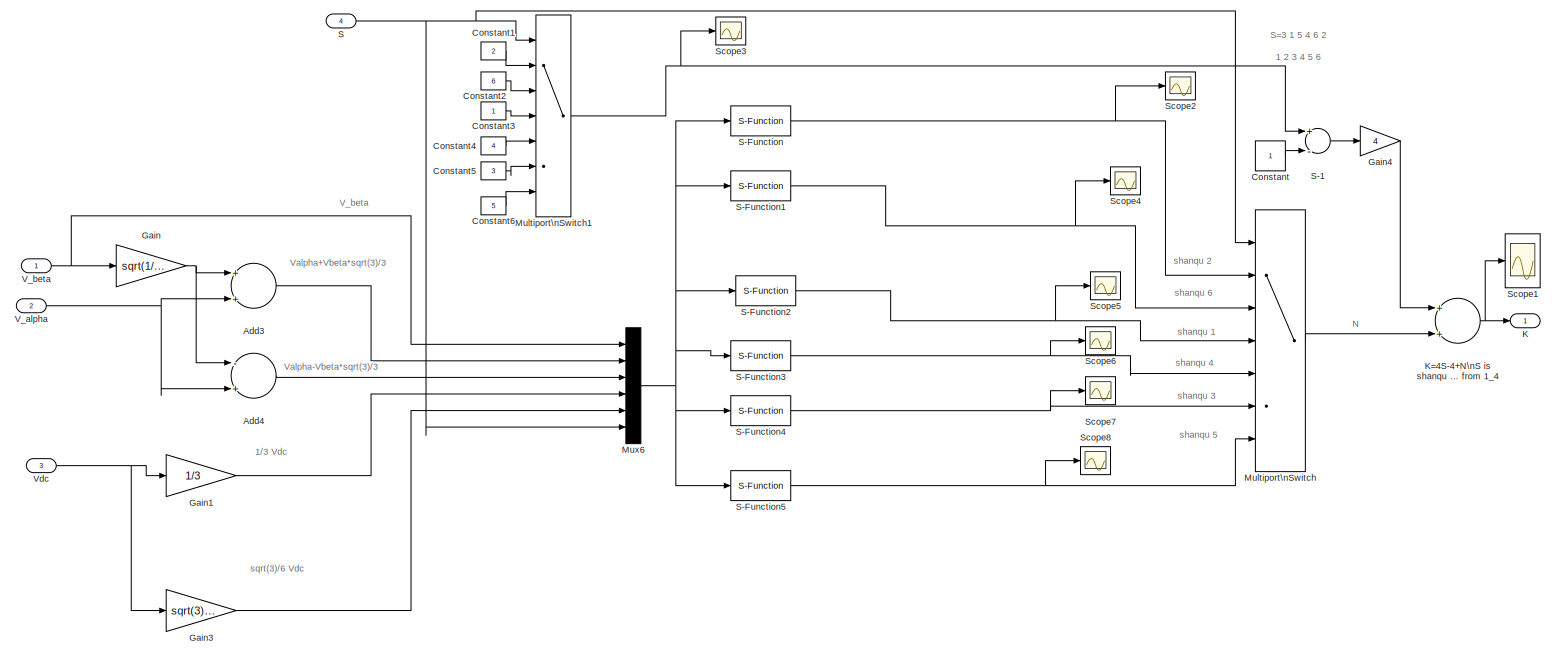
[diagram: svpwm/Subsystem5/calcuate K - part 1/1, most of the canvas]
BLOCK [SubSystem] svpwm/Subsystem5/calcuate K
  FunctionWithSeparateData = off
  MaskHideContents = off
  MinAlgLoopOccurrences = off
  Opaque = off
  Ports = [4, 1]
  PropExecContextOutsideSubsystem = off
  RTWSystemCode = Auto
  RequestExecContextInheritance = off
  SID = 280
BLOCK [Sum] svpwm/Subsystem5/calcuate K/Add3
  InputSameDT = off
  OutDataTypeStr = Inherit: Inherit via internal rule
  Ports = [2, 1]
  SID = 285
  SaturateOnIntegerOverflow = off
BLOCK [Sum] svpwm/Subsystem5/calcuate K/Add4
  InputSameDT = off
  Inputs = -+
  OutDataTypeStr = Inherit: Inherit via internal rule
  Ports = [2, 1]
  SID = 286
  SaturateOnIntegerOverflow = off
BLOCK [Constant] svpwm/Subsystem5/calcuate K/Constant
  SID = 287
BLOCK [Constant] svpwm/Subsystem5/calcuate K/Constant1
  SID = 288
  Value = 2
BLOCK [Constant] svpwm/Subsystem5/calcuate K/Constant2
  SID = 289
  Value = 6
BLOCK [Constant] svpwm/Subsystem5/calcuate K/Constant3
  SID = 290
BLOCK [Constant] svpwm/Subsystem5/calcuate K/Constant4
  SID = 291
  Value = 4
BLOCK [Constant] svpwm/Subsystem5/calcuate K/Constant5
  SID = 292
  Value = 3
BLOCK [Constant] svpwm/Subsystem5/calcuate K/Constant6
  SID = 293
  Value = 5
BLOCK [Gain] svpwm/Subsystem5/calcuate K/Gain
  Gain = sqrt(1/3)
  OutDataTypeStr = Inherit: Inherit via internal rule
  ParamDataTypeStr = Inherit: Inherit via internal rule
  SID = 294
  SaturateOnIntegerOverflow = off
BLOCK [Gain] svpwm/Subsystem5/calcuate K/Gain1
  Gain = 1/3
  OutDataTypeStr = Inherit: Inherit via internal rule
  ParamDataTypeStr = Inherit: Inherit via internal rule
  SID = 295
  SaturateOnIntegerOverflow = off
BLOCK [Gain] svpwm/Subsystem5/calcuate K/Gain3
  Gain = sqrt(3)/6
  OutDataTypeStr = Inherit: Inherit via internal rule
  ParamDataTypeStr = Inherit: Inherit via internal rule
  SID = 296
  SaturateOnIntegerOverflow = off
BLOCK [Gain] svpwm/Subsystem5/calcuate K/Gain4
  Gain = 4
  OutDataTypeStr = Inherit: Inherit via internal rule
  ParamDataTypeStr = Inherit: Inherit via internal rule
  SID = 297
  SaturateOnIntegerOverflow = off
BLOCK [Outport] svpwm/Subsystem5/calcuate K/K
  IconDisplay = Port number
  SID = 317
BLOCK [Sum] svpwm/Subsystem5/calcuate K/K=4S-4+N\nS is  shanqu   N is zone from 1_4
  InputSameDT = off
  OutDataTypeStr = Inherit: Inherit via internal rule
  Ports = [2, 1]
  SID = 298
  SaturateOnIntegerOverflow = off
BLOCK [MultiPortSwitch] svpwm/Subsystem5/calcuate K/Multiport\nSwitch
  InputSameDT = off
  Inputs = 6
  Ports = [7, 1]
  SID = 299
  SaturateOnIntegerOverflow = off
  zeroidx = off
BLOCK [MultiPortSwitch] svpwm/Subsystem5/calcuate K/Multiport\nSwitch1
  InputSameDT = off
  Inputs = 6
  Ports = [7, 1]
  SID = 300
  SaturateOnIntegerOverflow = off
  zeroidx = off
BLOCK [Mux] svpwm/Subsystem5/calcuate K/Mux6
  DisplayOption = bar
  Inputs = 6
  Ports = [6, 1]
  SID = 301
BLOCK [Inport] svpwm/Subsystem5/calcuate K/S
  IconDisplay = Port number
  Port = 4
  SID = 284
BLOCK [Sum] svpwm/Subsystem5/calcuate K/S-1
  InputSameDT = off
  Inputs = +-
  OutDataTypeStr = Inherit: Inherit via internal rule
  Ports = [2, 1]
  SID = 302
  SaturateOnIntegerOverflow = off
BLOCK [S-Function] svpwm/Subsystem5/calcuate K/S-Function
  EnableBusSupport = off
  FunctionName = ziji_sfun1
  Ports = [1, 1]
  SID = 303
BLOCK [S-Function] svpwm/Subsystem5/calcuate K/S-Function1
  EnableBusSupport = off
  FunctionName = ziji_sfun2
  Ports = [1, 1]
  SID = 304
BLOCK [S-Function] svpwm/Subsystem5/calcuate K/S-Function2
  EnableBusSupport = off
  FunctionName = ziji_sfun3
  Ports = [1, 1]
  SID = 305
BLOCK [S-Function] svpwm/Subsystem5/calcuate K/S-Function3
  EnableBusSupport = off
  FunctionName = ziji_sfun4
  Ports = [1, 1]
  SID = 306
BLOCK [S-Function] svpwm/Subsystem5/calcuate K/S-Function4
  EnableBusSupport = off
  FunctionName = ziji_sfun5
  Ports = [1, 1]
  SID = 307
BLOCK [S-Function] svpwm/Subsystem5/calcuate K/S-Function5
  EnableBusSupport = off
  FunctionName = ziji_sfun6
  Ports = [1, 1]
  SID = 308
BLOCK [Scope] svpwm/Subsystem5/calcuate K/Scope1
  DataFormat = StructureWithTime
  Floating = off
  LimitDataPoints = off
  NumInputPorts = 1
  Ports = [1]
  SID = 309
  SampleTime = 0
  SaveName = ScopeData6
  ZoomMode = xonly
BLOCK [Scope] svpwm/Subsystem5/calcuate K/Scope2
  DataFormat = StructureWithTime
  Floating = off
  LimitDataPoints = off
  NumInputPorts = 1
  Ports = [1]
  SID = 310
  SampleTime = 0
  SaveName = ScopeData25
  YMax = 4
  YMin = 0
  ZoomMode = xonly
BLOCK [Scope] svpwm/Subsystem5/calcuate K/Scope3
  DataFormat = StructureWithTime
  Floating = off
  LimitDataPoints = off
  NumInputPorts = 1
  Ports = [1]
  SID = 311
  SampleTime = 0
  SaveName = ScopeData5
  YMin = 1
  ZoomMode = xonly
BLOCK [Scope] svpwm/Subsystem5/calcuate K/Scope4
  DataFormat = StructureWithTime
  Floating = off
  LimitDataPoints = off
  NumInputPorts = 1
  Ports = [1]
  SID = 312
  SampleTime = 0
  SaveName = ScopeData8
  YMax = 2
  YMin = 0
  ZoomMode = xonly
BLOCK [Scope] svpwm/Subsystem5/calcuate K/Scope5
  DataFormat = StructureWithTime
  Floating = off
  LimitDataPoints = off
  NumInputPorts = 1
  Ports = [1]
  SID = 313
  SampleTime = 0
  SaveName = ScopeData9
  YMax = 4
  YMin = 0
  ZoomMode = xonly
BLOCK [Scope] svpwm/Subsystem5/calcuate K/Scope6
  DataFormat = StructureWithTime
  Floating = off
  LimitDataPoints = off
  NumInputPorts = 1
  Ports = [1]
  SID = 314
  SampleTime = 0
  SaveName = ScopeData10
  YMax = 4
  YMin = 0
  ZoomMode = xonly
BLOCK [Scope] svpwm/Subsystem5/calcuate K/Scope7
  DataFormat = StructureWithTime
  Floating = off
  LimitDataPoints = off
  NumInputPorts = 1
  Ports = [1]
  SID = 315
  SampleTime = 0
  SaveName = ScopeData11
  YMax = 4
  YMin = 0
  ZoomMode = xonly
BLOCK [Scope] svpwm/Subsystem5/calcuate K/Scope8
  DataFormat = StructureWithTime
  Floating = off
  LimitDataPoints = off
  NumInputPorts = 1
  Ports = [1]
  SID = 316
  SampleTime = 0
  SaveName = ScopeData12
  YMax = 4
  YMin = 0
  ZoomMode = xonly
BLOCK [Inport] svpwm/Subsystem5/calcuate K/V_alpha
  IconDisplay = Port number
  Port = 2
  SID = 282
BLOCK [Inport] svpwm/Subsystem5/calcuate K/V_beta
  IconDisplay = Port number
  SID = 281
BLOCK [Inport] svpwm/Subsystem5/calcuate K/Vdc
  IconDisplay = Port number
  Port = 3
  SID = 283
BLOCK [SubSystem] svpwm/Subsystem5/every phase's three states_ _0 -1 1
  FunctionWithSeparateData = off
  MaskHideContents = off
  MinAlgLoopOccurrences = off
  Opaque = off
  Ports = [3, 1]
  PropExecContextOutsideSubsystem = off
  RTWSystemCode = Auto
  RequestExecContextInheritance = off
  SID = 318
BLOCK [Constant] svpwm/Subsystem5/every phase's three states_ _0 -1 1/Constant
  SID = 322
BLOCK [Constant] svpwm/Subsystem5/every phase's three states_ _0 -1 1/Constant1
  SID = 323
  Value = 0
BLOCK [Demux] svpwm/Subsystem5/every phase's three states_ _0 -1 1/Demux
  DisplayOption = bar
  Outputs = 3
  Ports = [1, 3]
  SID = 324
BLOCK [Inport] svpwm/Subsystem5/every phase's three states_ _0 -1 1/K
  IconDisplay = Port number
  SID = 319
BLOCK [Mux] svpwm/Subsystem5/every phase's three states_ _0 -1 1/Mux1
  DisplayOption = bar
  Inputs = 3
  Ports = [3, 1]
  SID = 325
BLOCK [Scope] svpwm/Subsystem5/every phase's three states_ _0 -1 1/Scope
  DataFormat = StructureWithTime
  Floating = off
  LimitDataPoints = off
  NumInputPorts = 3
  Ports = [3]
  SID = 326
  SampleTime = 0
  SaveName = ScopeData28
  YMax = 5~5~5
  YMin = -5~-5~-5
BLOCK [SubSystem] svpwm/Subsystem5/every phase's three states_ _0 -1 1/Subsystem
  FunctionWithSeparateData = off
  MaskHideContents = off
  MinAlgLoopOccurrences = off
  Opaque = off
  Ports = [2, 1]
  PropExecContextOutsideSubsystem = off
  RTWSystemCode = Auto
  RequestExecContextInheritance = off
  SID = 327
BLOCK [Outport] svpwm/Subsystem5/every phase's three states_ _0 -1 1/Subsystem/A_state
  IconDisplay = Port number
  SID = 333
BLOCK [Constant] svpwm/Subsystem5/every phase's three states_ _0 -1 1/Subsystem/Constant2
  SID = 330
BLOCK [Inport] svpwm/Subsystem5/every phase's three states_ _0 -1 1/Subsystem/In2
  IconDisplay = Port number
  Port = 2
  SID = 329
BLOCK [Inport] svpwm/Subsystem5/every phase's three states_ _0 -1 1/Subsystem/K
  IconDisplay = Port number
  SID = 328
BLOCK [Sum] svpwm/Subsystem5/every phase's three states_ _0 -1 1/Subsystem/Sum3
  InputSameDT = off
  Inputs = -+
  OutDataTypeStr = Inherit: Inherit via internal rule
  Ports = [2, 1]
  SID = 331
BLOCK [MultiPortSwitch] svpwm/Subsystem5/every phase's three states_ _0 -1 1/Subsystem/pha qiehuan   dian Ta
  InputSameDT = off
  Inputs = 24
  Ports = [25, 1]
  SID = 332
  SaturateOnIntegerOverflow = off
  zeroidx = off
BLOCK [SubSystem] svpwm/Subsystem5/every phase's three states_ _0 -1 1/Subsystem1
  FunctionWithSeparateData = off
  MaskHideContents = off
  MinAlgLoopOccurrences = off
  Opaque = off
  Ports = [2, 1]
  PropExecContextOutsideSubsystem = off
  RTWSystemCode = Auto
  RequestExecContextInheritance = off
  SID = 334
BLOCK [Outport] svpwm/Subsystem5/every phase's three states_ _0 -1 1/Subsystem1/B_state
  IconDisplay = Port number
  SID = 340
BLOCK [Constant] svpwm/Subsystem5/every phase's three states_ _0 -1 1/Subsystem1/Constant2
  SID = 337
BLOCK [Inport] svpwm/Subsystem5/every phase's three states_ _0 -1 1/Subsystem1/In2
  IconDisplay = Port number
  Port = 2
  SID = 336
BLOCK [Inport] svpwm/Subsystem5/every phase's three states_ _0 -1 1/Subsystem1/K
  IconDisplay = Port number
  SID = 335
BLOCK [Sum] svpwm/Subsystem5/every phase's three states_ _0 -1 1/Subsystem1/Sum3
  InputSameDT = off
  Inputs = -+
  OutDataTypeStr = Inherit: Inherit via internal rule
  Ports = [2, 1]
  SID = 338
BLOCK [MultiPortSwitch] svpwm/Subsystem5/every phase's three states_ _0 -1 1/Subsystem1/phaseA  qiehuan   dian 
  InputSameDT = off
  Inputs = 24
  Ports = [25, 1]
  SID = 339
  SaturateOnIntegerOverflow = off
  zeroidx = off
BLOCK [SubSystem] svpwm/Subsystem5/every phase's three states_ _0 -1 1/Subsystem2
  FunctionWithSeparateData = off
  MaskHideContents = off
  MinAlgLoopOccurrences = off
  Opaque = off
  Ports = [2, 1]
  PropExecContextOutsideSubsystem = off
  RTWSystemCode = Auto
  RequestExecContextInheritance = off
  SID = 341
BLOCK [Outport] svpwm/Subsystem5/every phase's three states_ _0 -1 1/Subsystem2/C_state
  IconDisplay = Port number
  SID = 347
BLOCK [Constant] svpwm/Subsystem5/every phase's three states_ _0 -1 1/Subsystem2/Constant2
  SID = 344
BLOCK [Inport] svpwm/Subsystem5/every phase's three states_ _0 -1 1/Subsystem2/In2
  IconDisplay = Port number
  Port = 2
  SID = 343
BLOCK [Inport] svpwm/Subsystem5/every phase's three states_ _0 -1 1/Subsystem2/K
  IconDisplay = Port number
  SID = 342
BLOCK [Sum] svpwm/Subsystem5/every phase's three states_ _0 -1 1/Subsystem2/Sum3
  InputSameDT = off
  Inputs = -+
  OutDataTypeStr = Inherit: Inherit via internal rule
  Ports = [2, 1]
  SID = 345
BLOCK [MultiPortSwitch] svpwm/Subsystem5/every phase's three states_ _0 -1 1/Subsystem2/phaseA  qiehuan   dian 
  InputSameDT = off
  Inputs = 24
  Ports = [25, 1]
  SID = 346
  SaturateOnIntegerOverflow = off
  zeroidx = off
BLOCK [Sum] svpwm/Subsystem5/every phase's three states_ _0 -1 1/Sum
  InputSameDT = off
  Inputs = -+
  OutDataTypeStr = Inherit: Inherit via internal rule
  Ports = [2, 1]
  SID = 348
BLOCK [Sum] svpwm/Subsystem5/every phase's three states_ _0 -1 1/Sum1
  InputSameDT = off
  Inputs = -+
  OutDataTypeStr = Inherit: Inherit via internal rule
  Ports = [2, 1]
  SID = 349
BLOCK [Sum] svpwm/Subsystem5/every phase's three states_ _0 -1 1/Sum2
  InputSameDT = off
  Inputs = -+
  OutDataTypeStr = Inherit: Inherit via internal rule
  Ports = [2, 1]
  SID = 350
BLOCK [Switch] svpwm/Subsystem5/every phase's three states_ _0 -1 1/Switch
  InputSameDT = off
  SID = 351
BLOCK [Switch] svpwm/Subsystem5/every phase's three states_ _0 -1 1/Switch1
  InputSameDT = off
  SID = 352
BLOCK [Switch] svpwm/Subsystem5/every phase's three states_ _0 -1 1/Switch2
  InputSameDT = off
  SID = 353
BLOCK [Inport] svpwm/Subsystem5/every phase's three states_ _0 -1 1/Ta_Tb_Tc
  IconDisplay = Port number
  Port = 3
  SID = 321
BLOCK [Outport] svpwm/Subsystem5/every phase's three states_ _0 -1 1/state
  IconDisplay = Port number
  SID = 354
BLOCK [Inport] svpwm/Subsystem5/every phase's three states_ _0 -1 1/wave
  IconDisplay = Port number
  Port = 2
  SID = 320
BLOCK [SubSystem] svpwm/Subsystem5/look for S\nS=shan_qu \n\n 
  FunctionWithSeparateData = off
  MaskHideContents = off
  MinAlgLoopOccurrences = off
  Opaque = off
  Ports = [2, 1]
  PropExecContextOutsideSubsystem = off
  RTWSystemCode = Auto
  RequestExecContextInheritance = off
  SID = 355
BLOCK [Constant] svpwm/Subsystem5/look for S\nS=shan_qu \n\n /Constant
  SID = 358
BLOCK [Constant] svpwm/Subsystem5/look for S\nS=shan_qu \n\n /Constant1
  SID = 359
  Value = 0
BLOCK [Mux] svpwm/Subsystem5/look for S\nS=shan_qu \n\n /Mux
  Inputs = 2
  Ports = [2, 1]
  SID = 360
BLOCK [Mux] svpwm/Subsystem5/look for S\nS=shan_qu \n\n /Mux1
  Inputs = 3
  Ports = [3, 1]
  SID = 361
BLOCK [Fcn] svpwm/Subsystem5/look for S\nS=shan_qu \n\n /S
  Expr = 4*u[3]+2*u[2]+u[1]
  SID = 362
BLOCK [Outport] svpwm/Subsystem5/look for S\nS=shan_qu \n\n /S 
  IconDisplay = Port number
  SID = 369
BLOCK [Switch] svpwm/Subsystem5/look for S\nS=shan_qu \n\n /Switch
  InputSameDT = off
  SID = 363
  SaturateOnIntegerOverflow = off
BLOCK [Switch] svpwm/Subsystem5/look for S\nS=shan_qu \n\n /Switch1
  InputSameDT = off
  SID = 364
  SaturateOnIntegerOverflow = off
BLOCK [Switch] svpwm/Subsystem5/look for S\nS=shan_qu \n\n /Switch2
  InputSameDT = off
  SID = 365
  SaturateOnIntegerOverflow = off
BLOCK [Fcn] svpwm/Subsystem5/look for S\nS=shan_qu \n\n /U_ref1
  Expr = u[2]
  SID = 366
BLOCK [Fcn] svpwm/Subsystem5/look for S\nS=shan_qu \n\n /U_ref2
  Expr = u[1]*sqrt(3/4)-0.5*u[2]
  SID = 367
BLOCK [Fcn] svpwm/Subsystem5/look for S\nS=shan_qu \n\n /U_ref3
  Expr = -u[1]*sqrt(3/4)-u[2]*0.5
  SID = 368
BLOCK [Inport] svpwm/Subsystem5/look for S\nS=shan_qu \n\n /Ualpha
  IconDisplay = Port number
  SID = 356
BLOCK [Inport] svpwm/Subsystem5/look for S\nS=shan_qu \n\n /Ubeta
  IconDisplay = Port number
  Port = 2
  SID = 357
BLOCK [Inport] svpwm/Subsystem5/wave
  IconDisplay = Port number
  Port = 5
  SID = 148
BLOCK [Inport] svpwm/Ts
  IconDisplay = Port number
  Port = 5
  SID = 128
BLOCK [Inport] svpwm/Va
  IconDisplay = Port number
  SID = 124
BLOCK [Inport] svpwm/Vb
  IconDisplay = Port number
  Port = 2
  SID = 125
BLOCK [Inport] svpwm/Vc
  IconDisplay = Port number
  Port = 3
  SID = 126
BLOCK [Inport] svpwm/Vdc
  IconDisplay = Port number
  Port = 4
  SID = 127
ANNOTATION PLL/abctdq: d
ANNOTATION PLL/abctdq: q
ANNOTATION svpwm/Subsystem5: + Vdc --------------------------
ANNOTATION svpwm/Subsystem5: - Vdc--------------------------
ANNOTATION svpwm/Subsystem5: ---------- A
ANNOTATION svpwm/Subsystem5: --------------------------------------------------------------
ANNOTATION svpwm/Subsystem5: ----------[D]---------
ANNOTATION svpwm/Subsystem5: -1
ANNOTATION svpwm/Subsystem5: 0
ANNOTATION svpwm/Subsystem5: 1
ANNOTATION svpwm/Subsystem5: 3-phase State-to-Pulses Decoder
ANNOTATION svpwm/Subsystem5: Firing pulses
ANNOTATION svpwm/Subsystem5: N -----------
ANNOTATION svpwm/Subsystem5: Q1
ANNOTATION svpwm/Subsystem5: Q2
ANNOTATION svpwm/Subsystem5: Q3
ANNOTATION svpwm/Subsystem5: Q4
ANNOTATION svpwm/Subsystem5: State
ANNOTATION svpwm/Subsystem5: |\n|\n[Q2]\n|\n|
ANNOTATION svpwm/Subsystem5: |\n|\n[Q3]\n|\n|
ANNOTATION svpwm/Subsystem5: |\n|\n[Q4]\n|\n|\n|
ANNOTATION svpwm/Subsystem5: |\n|\n|\n[Q1]\n|\n|
ANNOTATION svpwm/Subsystem5: |\n|\n|\n|\n|\n|\n|\n|\n|
ANNOTATION svpwm/Subsystem5: |\n|\n|\n|\n|\n|\n|\n|\n|\n|\n|
ANNOTATION svpwm/Subsystem5/Subsystem2: A
ANNOTATION svpwm/Subsystem5/Subsystem2: B
ANNOTATION svpwm/Subsystem5/Subsystem2: C
ANNOTATION svpwm/Subsystem5/Subsystem2: Phase A: 1 to 4
ANNOTATION svpwm/Subsystem5/Subsystem2: Phase B: 5 to 8\nPhase C: 9 to 12
ANNOTATION svpwm/Subsystem5/X Y Z: U=2/3Vdc
ANNOTATION svpwm/Subsystem5/X Y Z: X
ANNOTATION svpwm/Subsystem5/X Y Z: Y
ANNOTATION svpwm/Subsystem5/X Y Z: Z
ANNOTATION svpwm/Subsystem5/X Y Z: next is ji suan X Y Z
ANNOTATION svpwm/Subsystem5/calcuate K: 1/3 Vdc
ANNOTATION svpwm/Subsystem5/calcuate K: N
ANNOTATION svpwm/Subsystem5/calcuate K: S=3 1 5 4 6 2\n\n 1 2 3 4 5 6
ANNOTATION svpwm/Subsystem5/calcuate K: V_beta
ANNOTATION svpwm/Subsystem5/calcuate K: Valpha+Vbeta*sqrt(3)/3
ANNOTATION svpwm/Subsystem5/calcuate K: Valpha-Vbeta*sqrt(3)/3
ANNOTATION svpwm/Subsystem5/calcuate K: shanqu 1
ANNOTATION svpwm/Subsystem5/calcuate K: shanqu 2
ANNOTATION svpwm/Subsystem5/calcuate K: shanqu 3
ANNOTATION svpwm/Subsystem5/calcuate K: shanqu 4
ANNOTATION svpwm/Subsystem5/calcuate K: shanqu 5
ANNOTATION svpwm/Subsystem5/calcuate K: shanqu 6
ANNOTATION svpwm/Subsystem5/calcuate K: sqrt(3)/6 Vdc
ANNOTATION svpwm/Subsystem5/look for S\nS=shan_qu \n\n : A
ANNOTATION svpwm/Subsystem5/look for S\nS=shan_qu \n\n : B
ANNOTATION svpwm/Subsystem5/look for S\nS=shan_qu \n\n : C
ANNOTATION svpwm/Subsystem5/look for S\nS=shan_qu \n\n : S=3 1 5 4 6 2\n\n 1 2 3 4 5 6
ANNOTATION svpwm/Subsystem5/look for S\nS=shan_qu \n\n : S=A+2B+4C
NET Bus\nSelector1:1 -> Scope21:1, Sum3:1
LINE Bus\nSelector2:1 -> Saturation1:1
LINE Bus\nSelector2:2 -> Saturation2:1
LINE Bus\nSelector2:3 -> Saturation3:1
LINE Bus\nSelector3:1 -> PLL:1
LINE Bus\nSelector3:2 -> PLL:2
LINE Bus\nSelector3:3 -> PLL:3
NET Bus\nSelector:1 -> Gain2:1, Scope14:1, Scope15:2, Sum1:2
NET Bus\nSelector:2 -> Gain1:1, Scope14:2, Sum2:2
LINE Constant1:1 -> Sum2:1
LINE Constant2:1 -> svpwm:5
LINE Constant8:1 -> Mux4:3
LINE Constant:1 -> Sum:1
LINE Current Measurement1:1 -> Mux3:2
LINE Current Measurement2:1 -> Mux3:3
NET Current Measurement:1 -> Mux1:2, Mux3:1
LINE From1:1 -> Three-Level Bridge:1
LINE From6:1 -> svpwm:4
LINE Gain1:1 -> Sum3:3
LINE Gain2:1 -> Sum5:2
LINE Gain3:1 -> Transfer Fcn3:1
LINE Gain4:1 -> Transfer Fcn1:1
LINE Gain5:1 -> Transfer Fcn2:1
LINE Mux1:1 -> Scope2:1
NET Mux2:1 -> Bus\nSelector3:1, Scope12:1, Scope6:1, abc_to_dq0\nTransformation1:1
NET Mux3:1 -> Scope12:2, abc_to_dq0\nTransformation:1
LINE Mux4:1 -> dq0_to_abc\nTransformation:1
NET Mux7:1 -> Scope13:1, abc_to_dq0\nTransformation1:2, abc_to_dq0\nTransformation:2, dq0_to_abc\nTransformation:2
LINE Mux:1 -> Scope1:1
LINE PLL/Constant3:1 -> PLL/Switch3:1
LINE PLL/Constant4:1 -> PLL/Switch3:3
LINE PLL/Constant5:1 -> PLL/Sum4:1
LINE PLL/Constant6:1 -> PLL/Sum5:1
NET PLL/Integrator:1 -> PLL/Switch3:2, PLL/abctdq:4, PLL/wt:1
LINE PLL/Sum4:1 -> PLL/Transfer Fcn:1
LINE PLL/Sum5:1 -> PLL/Integrator:1
LINE PLL/Switch3:1 -> PLL/Integrator:2
LINE PLL/Transfer Fcn:1 -> PLL/Sum5:2
LINE PLL/a:1 -> PLL/abctdq:1
LINE PLL/abctdq/Constant1:1 -> PLL/abctdq/Sum:2
LINE PLL/abctdq/Constant2:1 -> PLL/abctdq/Sum1:2
LINE PLL/abctdq/Constant3:1 -> PLL/abctdq/Sum2:1
LINE PLL/abctdq/Gain1:1 -> PLL/abctdq/id:1
LINE PLL/abctdq/Gain:1 -> PLL/abctdq/iq:1
LINE PLL/abctdq/Product10:1 -> PLL/abctdq/Sum4:1
LINE PLL/abctdq/Product11:1 -> PLL/abctdq/Sum3:3
LINE PLL/abctdq/Product12:1 -> PLL/abctdq/Sum4:3
LINE PLL/abctdq/Product7:1 -> PLL/abctdq/Sum3:2
LINE PLL/abctdq/Product8:1 -> PLL/abctdq/Sum4:2
LINE PLL/abctdq/Product9:1 -> PLL/abctdq/Sum3:1
NET PLL/abctdq/Sum1:1 -> PLL/abctdq/Trigonometric\nFunction4:1, PLL/abctdq/Trigonometric\nFunction5:1
NET PLL/abctdq/Sum2:1 -> PLL/abctdq/Trigonometric\nFunction2:1, PLL/abctdq/Trigonometric\nFunction3:1
LINE PLL/abctdq/Sum3:1 -> PLL/abctdq/Gain:1
LINE PLL/abctdq/Sum4:1 -> PLL/abctdq/Gain1:1
NET PLL/abctdq/Sum:1 -> PLL/abctdq/Sum1:1, PLL/abctdq/Sum2:2, PLL/abctdq/Trigonometric\nFunction1:1, PLL/abctdq/Trigonometric\nFunction:1
LINE PLL/abctdq/Trigonometric\nFunction1:1 -> PLL/abctdq/Product7:1
LINE PLL/abctdq/Trigonometric\nFunction2:1 -> PLL/abctdq/Product9:1
LINE PLL/abctdq/Trigonometric\nFunction3:1 -> PLL/abctdq/Product10:2
LINE PLL/abctdq/Trigonometric\nFunction4:1 -> PLL/abctdq/Product11:1
LINE PLL/abctdq/Trigonometric\nFunction5:1 -> PLL/abctdq/Product12:2
LINE PLL/abctdq/Trigonometric\nFunction:1 -> PLL/abctdq/Product8:2
NET PLL/abctdq/ia:1 -> PLL/abctdq/Product7:2, PLL/abctdq/Product8:1
NET PLL/abctdq/ib:1 -> PLL/abctdq/Product11:2, PLL/abctdq/Product12:1
NET PLL/abctdq/ic:1 -> PLL/abctdq/Product10:1, PLL/abctdq/Product9:2
LINE PLL/abctdq/wt:1 -> PLL/abctdq/Sum:1
LINE PLL/abctdq:1 -> PLL/Sum4:2
LINE PLL/b:1 -> PLL/abctdq:2
LINE PLL/c:1 -> PLL/abctdq:3
NET PLL:1 -> Scope19:2, Trigonometric\nFunction2:1, Trigonometric\nFunction:1
LINE Saturation1:1 -> svpwm:1
LINE Saturation2:1 -> svpwm:2
LINE Saturation3:1 -> svpwm:3
NET Saturation:1 -> Scope15:1, Sum1:1
LINE Sum1:1 -> Gain4:1
LINE Sum2:1 -> Gain5:1
NET Sum3:1 -> Mux4:1, Scope17:1
LINE Sum5:1 -> Mux4:2
LINE Sum:1 -> Gain3:1
LINE Timer1:1 -> Ideal Switch1:1
LINE Timer:1 -> Ideal Switch:1
NET Transfer Fcn1:1 -> Scope18:1, Sum3:2
LINE Transfer Fcn2:1 -> Sum5:1
LINE Transfer Fcn3:1 -> Saturation:1
LINE Trigonometric\nFunction2:1 -> Mux7:2
LINE Trigonometric\nFunction:1 -> Mux7:1
NET Voltage Measurement1:1 -> Mux1:1, Mux2:1, Mux:1, Scope19:1
NET Voltage Measurement2:1 -> Mux2:3, Mux:3
NET Voltage Measurement3:1 -> Mux2:2, Mux:2
NET Voltage Measurement:1 -> Goto5:1, Scope:1, Sum:2
NET abc_to_dq0\nTransformation1:1 -> Bus\nSelector1:1, Scope16:1
LINE abc_to_dq0\nTransformation:1 -> Bus\nSelector:1
NET dq0_to_abc\nTransformation:1 -> Bus\nSelector2:1, Scope20:1
LINE svpwm/Repeating\nSequence1:1 -> svpwm/Subsystem5:5
LINE svpwm/Sub4\nabc__alpha_beta/Add1:1 -> svpwm/Sub4\nabc__alpha_beta/Vbeta:1
LINE svpwm/Sub4\nabc__alpha_beta/Add:1 -> svpwm/Sub4\nabc__alpha_beta/Valfa:1
NET svpwm/Sub4\nabc__alpha_beta/Gain1:1 -> svpwm/Sub4\nabc__alpha_beta/Add:3, svpwm/Sub4\nabc__alpha_beta/Gain4:1
LINE svpwm/Sub4\nabc__alpha_beta/Gain3:1 -> svpwm/Sub4\nabc__alpha_beta/Add1:1
LINE svpwm/Sub4\nabc__alpha_beta/Gain4:1 -> svpwm/Sub4\nabc__alpha_beta/Add1:2
NET svpwm/Sub4\nabc__alpha_beta/Gain:1 -> svpwm/Sub4\nabc__alpha_beta/Add:2, svpwm/Sub4\nabc__alpha_beta/Gain3:1
LINE svpwm/Sub4\nabc__alpha_beta/Va:1 -> svpwm/Sub4\nabc__alpha_beta/Add:1
LINE svpwm/Sub4\nabc__alpha_beta/Vb:1 -> svpwm/Sub4\nabc__alpha_beta/Gain:1
LINE svpwm/Sub4\nabc__alpha_beta/Vc:1 -> svpwm/Sub4\nabc__alpha_beta/Gain1:1
NET svpwm/Sub4\nabc__alpha_beta:1 -> svpwm/Scope:1, svpwm/Subsystem5:1
LINE svpwm/Sub4\nabc__alpha_beta:2 -> svpwm/Subsystem5:2
LINE svpwm/Subsystem5/Gain:1 -> svpwm/Subsystem5/X Y Z:3
NET svpwm/Subsystem5/Subsystem/Add1:1 -> svpwm/Subsystem5/Subsystem/Add2:1, svpwm/Subsystem5/Subsystem/Mux:2
LINE svpwm/Subsystem5/Subsystem/Add2:1 -> svpwm/Subsystem5/Subsystem/Mux:3
LINE svpwm/Subsystem5/Subsystem/Add4:1 -> svpwm/Subsystem5/Subsystem/Gain1:1
NET svpwm/Subsystem5/Subsystem/Gain1:1 -> svpwm/Subsystem5/Subsystem/Add1:1, svpwm/Subsystem5/Subsystem/Mux:1
LINE svpwm/Subsystem5/Subsystem/Gain2:1 -> svpwm/Subsystem5/Subsystem/Add1:2
LINE svpwm/Subsystem5/Subsystem/Gain3:1 -> svpwm/Subsystem5/Subsystem/Add2:2
LINE svpwm/Subsystem5/Subsystem/Mux:1 -> svpwm/Subsystem5/Subsystem/taon_tbon_tcon:1
NET svpwm/Subsystem5/Subsystem/T1:1 -> svpwm/Subsystem5/Subsystem/Add4:2, svpwm/Subsystem5/Subsystem/Gain2:1
NET svpwm/Subsystem5/Subsystem/T2:1 -> svpwm/Subsystem5/Subsystem/Add4:3, svpwm/Subsystem5/Subsystem/Gain3:1
LINE svpwm/Subsystem5/Subsystem/Ts:1 -> svpwm/Subsystem5/Subsystem/Add4:1
NET svpwm/Subsystem5/Subsystem1/Demux:1 -> svpwm/Subsystem5/Subsystem1/Ta:1, svpwm/Subsystem5/Subsystem1/Tb:1, svpwm/Subsystem5/Subsystem1/Tc:1
NET svpwm/Subsystem5/Subsystem1/Demux:2 -> svpwm/Subsystem5/Subsystem1/Ta:2, svpwm/Subsystem5/Subsystem1/Tb:2, svpwm/Subsystem5/Subsystem1/Tc:2
NET svpwm/Subsystem5/Subsystem1/Demux:3 -> svpwm/Subsystem5/Subsystem1/Ta:3, svpwm/Subsystem5/Subsystem1/Tb:3, svpwm/Subsystem5/Subsystem1/Tc:3
NET svpwm/Subsystem5/Subsystem1/K:1 -> svpwm/Subsystem5/Subsystem1/Ta:4, svpwm/Subsystem5/Subsystem1/Tb:4, svpwm/Subsystem5/Subsystem1/Tc:4
LINE svpwm/Subsystem5/Subsystem1/Mux1:1 -> svpwm/Subsystem5/Subsystem1/Ta_Tb_Tc:1
LINE svpwm/Subsystem5/Subsystem1/Ta/K:1 -> svpwm/Subsystem5/Subsystem1/Ta/phaseA  qiehuan   dian Ta:1
LINE svpwm/Subsystem5/Subsystem1/Ta/phaseA  qiehuan   dian Ta:1 -> svpwm/Subsystem5/Subsystem1/Ta/Ta:1
NET svpwm/Subsystem5/Subsystem1/Ta/taon:1 -> svpwm/Subsystem5/Subsystem1/Ta/phaseA  qiehuan   dian Ta:14, svpwm/Subsystem5/Subsystem1/Ta/phaseA  qiehuan   dian Ta:18, svpwm/Subsystem5/Subsystem1/Ta/phaseA  qiehuan   dian Ta:20, svpwm/Subsystem5/Subsystem1/Ta/phaseA  qiehuan   dian Ta:23, svpwm/Subsystem5/Subsystem1/Ta/phaseA  qiehuan   dian Ta:24, svpwm/Subsystem5/Subsystem1/Ta/phaseA  qiehuan   dian Ta:25, svpwm/Subsystem5/Subsystem1/Ta/phaseA  qiehuan   dian Ta:3, svpwm/Subsystem5/Subsystem1/Ta/phaseA  qiehuan   dian Ta:5
NET svpwm/Subsystem5/Subsystem1/Ta/tbon:1 -> svpwm/Subsystem5/Subsystem1/Ta/phaseA  qiehuan   dian Ta:10, svpwm/Subsystem5/Subsystem1/Ta/phaseA  qiehuan   dian Ta:16, svpwm/Subsystem5/Subsystem1/Ta/phaseA  qiehuan   dian Ta:19, svpwm/Subsystem5/Subsystem1/Ta/phaseA  qiehuan   dian Ta:21, svpwm/Subsystem5/Subsystem1/Ta/phaseA  qiehuan   dian Ta:22, svpwm/Subsystem5/Subsystem1/Ta/phaseA  qiehuan   dian Ta:4, svpwm/Subsystem5/Subsystem1/Ta/phaseA  qiehuan   dian Ta:7, svpwm/Subsystem5/Subsystem1/Ta/phaseA  qiehuan   dian Ta:9
NET svpwm/Subsystem5/Subsystem1/Ta/tcon:1 -> svpwm/Subsystem5/Subsystem1/Ta/phaseA  qiehuan   dian Ta:11, svpwm/Subsystem5/Subsystem1/Ta/phaseA  qiehuan   dian Ta:12, svpwm/Subsystem5/Subsystem1/Ta/phaseA  qiehuan   dian Ta:13, svpwm/Subsystem5/Subsystem1/Ta/phaseA  qiehuan   dian Ta:15, svpwm/Subsystem5/Subsystem1/Ta/phaseA  qiehuan   dian Ta:17, svpwm/Subsystem5/Subsystem1/Ta/phaseA  qiehuan   dian Ta:2, svpwm/Subsystem5/Subsystem1/Ta/phaseA  qiehuan   dian Ta:6, svpwm/Subsystem5/Subsystem1/Ta/phaseA  qiehuan   dian Ta:8
LINE svpwm/Subsystem5/Subsystem1/Ta:1 -> svpwm/Subsystem5/Subsystem1/Mux1:1
LINE svpwm/Subsystem5/Subsystem1/Tb/K:1 -> svpwm/Subsystem5/Subsystem1/Tb/phaseA  qiehuan   dian Tb:1
LINE svpwm/Subsystem5/Subsystem1/Tb/phaseA  qiehuan   dian Tb:1 -> svpwm/Subsystem5/Subsystem1/Tb/Tb:1
NET svpwm/Subsystem5/Subsystem1/Tb/taon:1 -> svpwm/Subsystem5/Subsystem1/Tb/phaseA  qiehuan   dian Tb:11, svpwm/Subsystem5/Subsystem1/Tb/phaseA  qiehuan   dian Tb:13, svpwm/Subsystem5/Subsystem1/Tb/phaseA  qiehuan   dian Tb:2, svpwm/Subsystem5/Subsystem1/Tb/phaseA  qiehuan   dian Tb:22, svpwm/Subsystem5/Subsystem1/Tb/phaseA  qiehuan   dian Tb:4, svpwm/Subsystem5/Subsystem1/Tb/phaseA  qiehuan   dian Tb:7, svpwm/Subsystem5/Subsystem1/Tb/phaseA  qiehuan   dian Tb:8, svpwm/Subsystem5/Subsystem1/Tb/phaseA  qiehuan   dian Tb:9
NET svpwm/Subsystem5/Subsystem1/Tb/tbon:1 -> svpwm/Subsystem5/Subsystem1/Tb/phaseA  qiehuan   dian Tb:12, svpwm/Subsystem5/Subsystem1/Tb/phaseA  qiehuan   dian Tb:15, svpwm/Subsystem5/Subsystem1/Tb/phaseA  qiehuan   dian Tb:17, svpwm/Subsystem5/Subsystem1/Tb/phaseA  qiehuan   dian Tb:18, svpwm/Subsystem5/Subsystem1/Tb/phaseA  qiehuan   dian Tb:24, svpwm/Subsystem5/Subsystem1/Tb/phaseA  qiehuan   dian Tb:3, svpwm/Subsystem5/Subsystem1/Tb/phaseA  qiehuan   dian Tb:5, svpwm/Subsystem5/Subsystem1/Tb/phaseA  qiehuan   dian Tb:6
NET svpwm/Subsystem5/Subsystem1/Tb/tcon:1 -> svpwm/Subsystem5/Subsystem1/Tb/phaseA  qiehuan   dian Tb:10, svpwm/Subsystem5/Subsystem1/Tb/phaseA  qiehuan   dian Tb:14, svpwm/Subsystem5/Subsystem1/Tb/phaseA  qiehuan   dian Tb:16, svpwm/Subsystem5/Subsystem1/Tb/phaseA  qiehuan   dian Tb:19, svpwm/Subsystem5/Subsystem1/Tb/phaseA  qiehuan   dian Tb:20, svpwm/Subsystem5/Subsystem1/Tb/phaseA  qiehuan   dian Tb:21, svpwm/Subsystem5/Subsystem1/Tb/phaseA  qiehuan   dian Tb:23, svpwm/Subsystem5/Subsystem1/Tb/phaseA  qiehuan   dian Tb:25
LINE svpwm/Subsystem5/Subsystem1/Tb:1 -> svpwm/Subsystem5/Subsystem1/Mux1:2
LINE svpwm/Subsystem5/Subsystem1/Tc/K:1 -> svpwm/Subsystem5/Subsystem1/Tc/phaseA  qiehuan   dian Tc:1
LINE svpwm/Subsystem5/Subsystem1/Tc/phaseA  qiehuan   dian Tc:1 -> svpwm/Subsystem5/Subsystem1/Tc/Tc:1
NET svpwm/Subsystem5/Subsystem1/Tc/taon:1 -> svpwm/Subsystem5/Subsystem1/Tc/phaseA  qiehuan   dian Tc:10, svpwm/Subsystem5/Subsystem1/Tc/phaseA  qiehuan   dian Tc:12, svpwm/Subsystem5/Subsystem1/Tc/phaseA  qiehuan   dian Tc:15, svpwm/Subsystem5/Subsystem1/Tc/phaseA  qiehuan   dian Tc:16, svpwm/Subsystem5/Subsystem1/Tc/phaseA  qiehuan   dian Tc:17, svpwm/Subsystem5/Subsystem1/Tc/phaseA  qiehuan   dian Tc:19, svpwm/Subsystem5/Subsystem1/Tc/phaseA  qiehuan   dian Tc:21, svpwm/Subsystem5/Subsystem1/Tc/phaseA  qiehuan   dian Tc:6
NET svpwm/Subsystem5/Subsystem1/Tc/tbon:1 -> svpwm/Subsystem5/Subsystem1/Tc/phaseA  qiehuan   dian Tc:11, svpwm/Subsystem5/Subsystem1/Tc/phaseA  qiehuan   dian Tc:13, svpwm/Subsystem5/Subsystem1/Tc/phaseA  qiehuan   dian Tc:14, svpwm/Subsystem5/Subsystem1/Tc/phaseA  qiehuan   dian Tc:2, svpwm/Subsystem5/Subsystem1/Tc/phaseA  qiehuan   dian Tc:20, svpwm/Subsystem5/Subsystem1/Tc/phaseA  qiehuan   dian Tc:23, svpwm/Subsystem5/Subsystem1/Tc/phaseA  qiehuan   dian Tc:25, svpwm/Subsystem5/Subsystem1/Tc/phaseA  qiehuan   dian Tc:8
NET svpwm/Subsystem5/Subsystem1/Tc/tcon:1 -> svpwm/Subsystem5/Subsystem1/Tc/phaseA  qiehuan   dian Tc:18, svpwm/Subsystem5/Subsystem1/Tc/phaseA  qiehuan   dian Tc:22, svpwm/Subsystem5/Subsystem1/Tc/phaseA  qiehuan   dian Tc:24, svpwm/Subsystem5/Subsystem1/Tc/phaseA  qiehuan   dian Tc:3, svpwm/Subsystem5/Subsystem1/Tc/phaseA  qiehuan   dian Tc:4, svpwm/Subsystem5/Subsystem1/Tc/phaseA  qiehuan   dian Tc:5, svpwm/Subsystem5/Subsystem1/Tc/phaseA  qiehuan   dian Tc:7, svpwm/Subsystem5/Subsystem1/Tc/phaseA  qiehuan   dian Tc:9
LINE svpwm/Subsystem5/Subsystem1/Tc:1 -> svpwm/Subsystem5/Subsystem1/Mux1:3
LINE svpwm/Subsystem5/Subsystem1/taon_tbon_tcon:1 -> svpwm/Subsystem5/Subsystem1/Demux:1
LINE svpwm/Subsystem5/Subsystem1:1 -> svpwm/Subsystem5/every phase's three states_ _0 -1 1:3
NET svpwm/Subsystem5/Subsystem2/Constant11:1 -> svpwm/Subsystem5/Subsystem2/Multiport\nSwitch3:4, svpwm/Subsystem5/Subsystem2/Multiport\nSwitch4:4, svpwm/Subsystem5/Subsystem2/Multiport\nSwitch:4
NET svpwm/Subsystem5/Subsystem2/Constant12:1 -> svpwm/Subsystem5/Subsystem2/Multiport\nSwitch3:2, svpwm/Subsystem5/Subsystem2/Multiport\nSwitch4:2, svpwm/Subsystem5/Subsystem2/Multiport\nSwitch:2
NET svpwm/Subsystem5/Subsystem2/Constant13:1 -> svpwm/Subsystem5/Subsystem2/Multiport\nSwitch3:3, svpwm/Subsystem5/Subsystem2/Multiport\nSwitch4:3, svpwm/Subsystem5/Subsystem2/Multiport\nSwitch:3
LINE svpwm/Subsystem5/Subsystem2/Constant:1 -> svpwm/Subsystem5/Subsystem2/Sum:1
NET svpwm/Subsystem5/Subsystem2/Demux:1 -> svpwm/Subsystem5/Subsystem2/Multiport\nSwitch:1, svpwm/Subsystem5/Subsystem2/Scope1:1
NET svpwm/Subsystem5/Subsystem2/Demux:2 -> svpwm/Subsystem5/Subsystem2/Multiport\nSwitch3:1, svpwm/Subsystem5/Subsystem2/Scope1:2
NET svpwm/Subsystem5/Subsystem2/Demux:3 -> svpwm/Subsystem5/Subsystem2/Saturation:1, svpwm/Subsystem5/Subsystem2/Scope1:3
NET svpwm/Subsystem5/Subsystem2/Multiport\nSwitch3:1 -> svpwm/Subsystem5/Subsystem2/Mux:2, svpwm/Subsystem5/Subsystem2/Scope2:2
NET svpwm/Subsystem5/Subsystem2/Multiport\nSwitch4:1 -> svpwm/Subsystem5/Subsystem2/Mux:3, svpwm/Subsystem5/Subsystem2/Scope2:3
NET svpwm/Subsystem5/Subsystem2/Multiport\nSwitch:1 -> svpwm/Subsystem5/Subsystem2/Mux:1, svpwm/Subsystem5/Subsystem2/Scope2:1
LINE svpwm/Subsystem5/Subsystem2/Mux:1 -> svpwm/Subsystem5/Subsystem2/Pulses:1
LINE svpwm/Subsystem5/Subsystem2/Saturation1:1 -> svpwm/Subsystem5/Subsystem2/Demux:1
LINE svpwm/Subsystem5/Subsystem2/Saturation:1 -> svpwm/Subsystem5/Subsystem2/Multiport\nSwitch4:1
LINE svpwm/Subsystem5/Subsystem2/Sum:1 -> svpwm/Subsystem5/Subsystem2/Saturation1:1
LINE svpwm/Subsystem5/Subsystem2/state:1 -> svpwm/Subsystem5/Subsystem2/Sum:2
LINE svpwm/Subsystem5/Subsystem2:1 -> svpwm/Subsystem5/Pulses:1
LINE svpwm/Subsystem5/Subsystem:1 -> svpwm/Subsystem5/Subsystem1:2
LINE svpwm/Subsystem5/T1_T2/ calculate  T1/Add10:1 -> svpwm/Subsystem5/T1_T2/ calculate  T1/Multiport\nSwitch:25
NET svpwm/Subsystem5/T1_T2/ calculate  T1/Add3:1 -> svpwm/Subsystem5/T1_T2/ calculate  T1/Gain1:1, svpwm/Subsystem5/T1_T2/ calculate  T1/Multiport\nSwitch:3
NET svpwm/Subsystem5/T1_T2/ calculate  T1/Add4:1 -> svpwm/Subsystem5/T1_T2/ calculate  T1/Gain3:1, svpwm/Subsystem5/T1_T2/ calculate  T1/Multiport\nSwitch:12, svpwm/Subsystem5/T1_T2/ calculate  T1/Multiport\nSwitch:6
LINE svpwm/Subsystem5/T1_T2/ calculate  T1/Add5:1 -> svpwm/Subsystem5/T1_T2/ calculate  T1/Multiport\nSwitch:9
NET svpwm/Subsystem5/T1_T2/ calculate  T1/Add6:1 -> svpwm/Subsystem5/T1_T2/ calculate  T1/Gain6:1, svpwm/Subsystem5/T1_T2/ calculate  T1/Multiport\nSwitch:14, svpwm/Subsystem5/T1_T2/ calculate  T1/Multiport\nSwitch:20
LINE svpwm/Subsystem5/T1_T2/ calculate  T1/Add7:1 -> svpwm/Subsystem5/T1_T2/ calculate  T1/Multiport\nSwitch:16
LINE svpwm/Subsystem5/T1_T2/ calculate  T1/Add8:1 -> svpwm/Subsystem5/T1_T2/ calculate  T1/Multiport\nSwitch:17
NET svpwm/Subsystem5/T1_T2/ calculate  T1/Add9:1 -> svpwm/Subsystem5/T1_T2/ calculate  T1/Gain8:1, svpwm/Subsystem5/T1_T2/ calculate  T1/Multiport\nSwitch:22
LINE svpwm/Subsystem5/T1_T2/ calculate  T1/Gain1:1 -> svpwm/Subsystem5/T1_T2/ calculate  T1/Multiport\nSwitch:4
LINE svpwm/Subsystem5/T1_T2/ calculate  T1/Gain2:1 -> svpwm/Subsystem5/T1_T2/ calculate  T1/Multiport\nSwitch:7
NET svpwm/Subsystem5/T1_T2/ calculate  T1/Gain3:1 -> svpwm/Subsystem5/T1_T2/ calculate  T1/Multiport\nSwitch:11, svpwm/Subsystem5/T1_T2/ calculate  T1/Multiport\nSwitch:8
LINE svpwm/Subsystem5/T1_T2/ calculate  T1/Gain4:1 -> svpwm/Subsystem5/T1_T2/ calculate  T1/Multiport\nSwitch:10
LINE svpwm/Subsystem5/T1_T2/ calculate  T1/Gain5:1 -> svpwm/Subsystem5/T1_T2/ calculate  T1/Multiport\nSwitch:15
LINE svpwm/Subsystem5/T1_T2/ calculate  T1/Gain6:1 -> svpwm/Subsystem5/T1_T2/ calculate  T1/Multiport\nSwitch:19
LINE svpwm/Subsystem5/T1_T2/ calculate  T1/Gain7:1 -> svpwm/Subsystem5/T1_T2/ calculate  T1/Multiport\nSwitch:21
LINE svpwm/Subsystem5/T1_T2/ calculate  T1/Gain8:1 -> svpwm/Subsystem5/T1_T2/ calculate  T1/Multiport\nSwitch:24
LINE svpwm/Subsystem5/T1_T2/ calculate  T1/K:1 -> svpwm/Subsystem5/T1_T2/ calculate  T1/Multiport\nSwitch:1
LINE svpwm/Subsystem5/T1_T2/ calculate  T1/Multiport\nSwitch:1 -> svpwm/Subsystem5/T1_T2/ calculate  T1/T1:1
NET svpwm/Subsystem5/T1_T2/ calculate  T1/Ts:1 -> svpwm/Subsystem5/T1_T2/ calculate  T1/Add10:1, svpwm/Subsystem5/T1_T2/ calculate  T1/Add3:2, svpwm/Subsystem5/T1_T2/ calculate  T1/Add4:1, svpwm/Subsystem5/T1_T2/ calculate  T1/Add5:2, svpwm/Subsystem5/T1_T2/ calculate  T1/Add6:2, svpwm/Subsystem5/T1_T2/ calculate  T1/Add7:2, svpwm/Subsystem5/T1_T2/ calculate  T1/Add8:2, svpwm/Subsystem5/T1_T2/ calculate  T1/Add9:2
NET svpwm/Subsystem5/T1_T2/ calculate  T1/X:1 -> svpwm/Subsystem5/T1_T2/ calculate  T1/Add4:2, svpwm/Subsystem5/T1_T2/ calculate  T1/Add8:1, svpwm/Subsystem5/T1_T2/ calculate  T1/Gain5:1, svpwm/Subsystem5/T1_T2/ calculate  T1/Multiport\nSwitch:13, svpwm/Subsystem5/T1_T2/ calculate  T1/Multiport\nSwitch:2
NET svpwm/Subsystem5/T1_T2/ calculate  T1/Y:1 -> svpwm/Subsystem5/T1_T2/ calculate  T1/Add10:2, svpwm/Subsystem5/T1_T2/ calculate  T1/Add6:1, svpwm/Subsystem5/T1_T2/ calculate  T1/Gain4:1, svpwm/Subsystem5/T1_T2/ calculate  T1/Gain7:1, svpwm/Subsystem5/T1_T2/ calculate  T1/Multiport\nSwitch:23
NET svpwm/Subsystem5/T1_T2/ calculate  T1/Z:1 -> svpwm/Subsystem5/T1_T2/ calculate  T1/Add3:1, svpwm/Subsystem5/T1_T2/ calculate  T1/Add5:1, svpwm/Subsystem5/T1_T2/ calculate  T1/Add7:1, svpwm/Subsystem5/T1_T2/ calculate  T1/Add9:1, svpwm/Subsystem5/T1_T2/ calculate  T1/Gain2:1, svpwm/Subsystem5/T1_T2/ calculate  T1/Multiport\nSwitch:18, svpwm/Subsystem5/T1_T2/ calculate  T1/Multiport\nSwitch:5
LINE svpwm/Subsystem5/T1_T2/ calculate  T1:1 -> svpwm/Subsystem5/T1_T2/T1:1
NET svpwm/Subsystem5/T1_T2/ calculate  T2/Add2:1 -> svpwm/Subsystem5/T1_T2/ calculate  T2/Gain9:1, svpwm/Subsystem5/T1_T2/ calculate  T2/Multiport\nSwitch:2, svpwm/Subsystem5/T1_T2/ calculate  T2/Multiport\nSwitch:8
LINE svpwm/Subsystem5/T1_T2/ calculate  T2/Add3:1 -> svpwm/Subsystem5/T1_T2/ calculate  T2/Multiport\nSwitch:5
NET svpwm/Subsystem5/T1_T2/ calculate  T2/Add4:1 -> svpwm/Subsystem5/T1_T2/ calculate  T2/Gain3:1, svpwm/Subsystem5/T1_T2/ calculate  T2/Multiport\nSwitch:10
NET svpwm/Subsystem5/T1_T2/ calculate  T2/Add5:1 -> svpwm/Subsystem5/T1_T2/ calculate  T2/Multiport\nSwitch:13, svpwm/Subsystem5/T1_T2/ calculate  T2/Multiport\nSwitch:16
NET svpwm/Subsystem5/T1_T2/ calculate  T2/Add6:1 -> svpwm/Subsystem5/T1_T2/ calculate  T2/Gain5:1, svpwm/Subsystem5/T1_T2/ calculate  T2/Multiport\nSwitch:18, svpwm/Subsystem5/T1_T2/ calculate  T2/Multiport\nSwitch:24
LINE svpwm/Subsystem5/T1_T2/ calculate  T2/Add7:1 -> svpwm/Subsystem5/T1_T2/ calculate  T2/Multiport\nSwitch:21
NET svpwm/Subsystem5/T1_T2/ calculate  T2/Gain1:1 -> svpwm/Subsystem5/T1_T2/ calculate  T2/Multiport\nSwitch:17, svpwm/Subsystem5/T1_T2/ calculate  T2/Multiport\nSwitch:6
LINE svpwm/Subsystem5/T1_T2/ calculate  T2/Gain2:1 -> svpwm/Subsystem5/T1_T2/ calculate  T2/Multiport\nSwitch:11
NET svpwm/Subsystem5/T1_T2/ calculate  T2/Gain3:1 -> svpwm/Subsystem5/T1_T2/ calculate  T2/Multiport\nSwitch:12, svpwm/Subsystem5/T1_T2/ calculate  T2/Multiport\nSwitch:15
LINE svpwm/Subsystem5/T1_T2/ calculate  T2/Gain4:1 -> svpwm/Subsystem5/T1_T2/ calculate  T2/Multiport\nSwitch:14
NET svpwm/Subsystem5/T1_T2/ calculate  T2/Gain5:1 -> svpwm/Subsystem5/T1_T2/ calculate  T2/Multiport\nSwitch:20, svpwm/Subsystem5/T1_T2/ calculate  T2/Multiport\nSwitch:23
LINE svpwm/Subsystem5/T1_T2/ calculate  T2/Gain6:1 -> svpwm/Subsystem5/T1_T2/ calculate  T2/Multiport\nSwitch:25
NET svpwm/Subsystem5/T1_T2/ calculate  T2/Gain9:1 -> svpwm/Subsystem5/T1_T2/ calculate  T2/Multiport\nSwitch:4, svpwm/Subsystem5/T1_T2/ calculate  T2/Multiport\nSwitch:7
LINE svpwm/Subsystem5/T1_T2/ calculate  T2/K:1 -> svpwm/Subsystem5/T1_T2/ calculate  T2/Multiport\nSwitch:1
LINE svpwm/Subsystem5/T1_T2/ calculate  T2/Multiport\nSwitch:1 -> svpwm/Subsystem5/T1_T2/ calculate  T2/T2:1
NET svpwm/Subsystem5/T1_T2/ calculate  T2/Ts:1 -> svpwm/Subsystem5/T1_T2/ calculate  T2/Add2:2, svpwm/Subsystem5/T1_T2/ calculate  T2/Add3:2, svpwm/Subsystem5/T1_T2/ calculate  T2/Add4:2, svpwm/Subsystem5/T1_T2/ calculate  T2/Add5:2, svpwm/Subsystem5/T1_T2/ calculate  T2/Add6:2, svpwm/Subsystem5/T1_T2/ calculate  T2/Add7:2
NET svpwm/Subsystem5/T1_T2/ calculate  T2/X:1 -> svpwm/Subsystem5/T1_T2/ calculate  T2/Add3:1, svpwm/Subsystem5/T1_T2/ calculate  T2/Add6:1, svpwm/Subsystem5/T1_T2/ calculate  T2/Gain4:1, svpwm/Subsystem5/T1_T2/ calculate  T2/Gain6:1, svpwm/Subsystem5/T1_T2/ calculate  T2/Multiport\nSwitch:3
NET svpwm/Subsystem5/T1_T2/ calculate  T2/Y:1 -> svpwm/Subsystem5/T1_T2/ calculate  T2/Add2:1, svpwm/Subsystem5/T1_T2/ calculate  T2/Add5:1, svpwm/Subsystem5/T1_T2/ calculate  T2/Gain2:1, svpwm/Subsystem5/T1_T2/ calculate  T2/Multiport\nSwitch:22, svpwm/Subsystem5/T1_T2/ calculate  T2/Multiport\nSwitch:9
NET svpwm/Subsystem5/T1_T2/ calculate  T2/Z:1 -> svpwm/Subsystem5/T1_T2/ calculate  T2/Add4:1, svpwm/Subsystem5/T1_T2/ calculate  T2/Add7:1, svpwm/Subsystem5/T1_T2/ calculate  T2/Gain1:1, svpwm/Subsystem5/T1_T2/ calculate  T2/Multiport\nSwitch:19
LINE svpwm/Subsystem5/T1_T2/ calculate  T2:1 -> svpwm/Subsystem5/T1_T2/T2:1
LINE svpwm/Subsystem5/T1_T2/Demux1:1 -> svpwm/Subsystem5/T1_T2/ calculate  T2:2
LINE svpwm/Subsystem5/T1_T2/Demux1:2 -> svpwm/Subsystem5/T1_T2/ calculate  T2:3
LINE svpwm/Subsystem5/T1_T2/Demux1:3 -> svpwm/Subsystem5/T1_T2/ calculate  T2:4
LINE svpwm/Subsystem5/T1_T2/Demux:1 -> svpwm/Subsystem5/T1_T2/ calculate  T1:2
LINE svpwm/Subsystem5/T1_T2/Demux:2 -> svpwm/Subsystem5/T1_T2/ calculate  T1:3
LINE svpwm/Subsystem5/T1_T2/Demux:3 -> svpwm/Subsystem5/T1_T2/ calculate  T1:4
NET svpwm/Subsystem5/T1_T2/K:1 -> svpwm/Subsystem5/T1_T2/ calculate  T1:1, svpwm/Subsystem5/T1_T2/ calculate  T2:1
NET svpwm/Subsystem5/T1_T2/Ts:1 -> svpwm/Subsystem5/T1_T2/ calculate  T1:5, svpwm/Subsystem5/T1_T2/ calculate  T2:5
NET svpwm/Subsystem5/T1_T2/XYZ:1 -> svpwm/Subsystem5/T1_T2/Demux1:1, svpwm/Subsystem5/T1_T2/Demux:1
LINE svpwm/Subsystem5/T1_T2:1 -> svpwm/Subsystem5/Subsystem:2
LINE svpwm/Subsystem5/T1_T2:2 -> svpwm/Subsystem5/Subsystem:3
NET svpwm/Subsystem5/Ts:1 -> svpwm/Subsystem5/Subsystem:1, svpwm/Subsystem5/T1_T2:3, svpwm/Subsystem5/X Y Z:2
NET svpwm/Subsystem5/Valfa:1 -> svpwm/Subsystem5/X Y Z:4, svpwm/Subsystem5/calcuate K:2, svpwm/Subsystem5/look for S\nS=shan_qu \n\n :1
NET svpwm/Subsystem5/Vbeta:1 -> svpwm/Subsystem5/Scope1:1, svpwm/Subsystem5/X Y Z:1, svpwm/Subsystem5/calcuate K:1, svpwm/Subsystem5/look for S\nS=shan_qu \n\n :2
NET svpwm/Subsystem5/Vdc:1 -> svpwm/Subsystem5/Gain:1, svpwm/Subsystem5/calcuate K:3
LINE svpwm/Subsystem5/X Y Z/1//sqrt(3)2:1 -> svpwm/Subsystem5/X Y Z/Add1:2
LINE svpwm/Subsystem5/X Y Z/1//sqrt(3):1 -> svpwm/Subsystem5/X Y Z/Add:2
LINE svpwm/Subsystem5/X Y Z/1:1 -> svpwm/Subsystem5/X Y Z/Divide2:2
LINE svpwm/Subsystem5/X Y Z/2:1 -> svpwm/Subsystem5/X Y Z/Divide1:2
LINE svpwm/Subsystem5/X Y Z/Add1:1 -> svpwm/Subsystem5/X Y Z/Divide2:1
LINE svpwm/Subsystem5/X Y Z/Add:1 -> svpwm/Subsystem5/X Y Z/Divide1:1
LINE svpwm/Subsystem5/X Y Z/Constant3:1 -> svpwm/Subsystem5/X Y Z/Divide:1
LINE svpwm/Subsystem5/X Y Z/Constant4:1 -> svpwm/Subsystem5/X Y Z/Divide:4
LINE svpwm/Subsystem5/X Y Z/Divide1:1 -> svpwm/Subsystem5/X Y Z/Mux:2
LINE svpwm/Subsystem5/X Y Z/Divide2:1 -> svpwm/Subsystem5/X Y Z/Mux:3
LINE svpwm/Subsystem5/X Y Z/Divide:1 -> svpwm/Subsystem5/X Y Z/Mux:1
LINE svpwm/Subsystem5/X Y Z/Mux:1 -> svpwm/Subsystem5/X Y Z/XYZ:1
NET svpwm/Subsystem5/X Y Z/Ts:1 -> svpwm/Subsystem5/X Y Z/1:1, svpwm/Subsystem5/X Y Z/2:1, svpwm/Subsystem5/X Y Z/Divide:3
NET svpwm/Subsystem5/X Y Z/U:1 -> svpwm/Subsystem5/X Y Z/Divide1:3, svpwm/Subsystem5/X Y Z/Divide2:3, svpwm/Subsystem5/X Y Z/Divide:5
NET svpwm/Subsystem5/X Y Z/V_alpha:1 -> svpwm/Subsystem5/X Y Z/Add1:1, svpwm/Subsystem5/X Y Z/Add:1
NET svpwm/Subsystem5/X Y Z/V_beta:1 -> svpwm/Subsystem5/X Y Z/1//sqrt(3)2:1, svpwm/Subsystem5/X Y Z/1//sqrt(3):1, svpwm/Subsystem5/X Y Z/Divide:2
LINE svpwm/Subsystem5/X Y Z:1 -> svpwm/Subsystem5/T1_T2:2
LINE svpwm/Subsystem5/calcuate K/Add3:1 -> svpwm/Subsystem5/calcuate K/Mux6:2
LINE svpwm/Subsystem5/calcuate K/Add4:1 -> svpwm/Subsystem5/calcuate K/Mux6:3
LINE svpwm/Subsystem5/calcuate K/Constant1:1 -> svpwm/Subsystem5/calcuate K/Multiport\nSwitch1:2
LINE svpwm/Subsystem5/calcuate K/Constant2:1 -> svpwm/Subsystem5/calcuate K/Multiport\nSwitch1:3
LINE svpwm/Subsystem5/calcuate K/Constant3:1 -> svpwm/Subsystem5/calcuate K/Multiport\nSwitch1:4
LINE svpwm/Subsystem5/calcuate K/Constant4:1 -> svpwm/Subsystem5/calcuate K/Multiport\nSwitch1:5
LINE svpwm/Subsystem5/calcuate K/Constant5:1 -> svpwm/Subsystem5/calcuate K/Multiport\nSwitch1:6
LINE svpwm/Subsystem5/calcuate K/Constant6:1 -> svpwm/Subsystem5/calcuate K/Multiport\nSwitch1:7
LINE svpwm/Subsystem5/calcuate K/Constant:1 -> svpwm/Subsystem5/calcuate K/S-1:2
LINE svpwm/Subsystem5/calcuate K/Gain1:1 -> svpwm/Subsystem5/calcuate K/Mux6:4
LINE svpwm/Subsystem5/calcuate K/Gain3:1 -> svpwm/Subsystem5/calcuate K/Mux6:5
LINE svpwm/Subsystem5/calcuate K/Gain4:1 -> svpwm/Subsystem5/calcuate K/K=4S-4+N\nS is  shanqu   N is zone from 1_4:1
NET svpwm/Subsystem5/calcuate K/Gain:1 -> svpwm/Subsystem5/calcuate K/Add3:1, svpwm/Subsystem5/calcuate K/Add4:1
NET svpwm/Subsystem5/calcuate K/K=4S-4+N\nS is  shanqu   N is zone from 1_4:1 -> svpwm/Subsystem5/calcuate K/K:1, svpwm/Subsystem5/calcuate K/Scope1:1
NET svpwm/Subsystem5/calcuate K/Multiport\nSwitch1:1 -> svpwm/Subsystem5/calcuate K/S-1:1, svpwm/Subsystem5/calcuate K/Scope3:1
LINE svpwm/Subsystem5/calcuate K/Multiport\nSwitch:1 -> svpwm/Subsystem5/calcuate K/K=4S-4+N\nS is  shanqu   N is zone from 1_4:2
NET svpwm/Subsystem5/calcuate K/Mux6:1 -> svpwm/Subsystem5/calcuate K/S-Function1:1, svpwm/Subsystem5/calcuate K/S-Function2:1, svpwm/Subsystem5/calcuate K/S-Function3:1, svpwm/Subsystem5/calcuate K/S-Function4:1, svpwm/Subsystem5/calcuate K/S-Function5:1, svpwm/Subsystem5/calcuate K/S-Function:1
LINE svpwm/Subsystem5/calcuate K/S-1:1 -> svpwm/Subsystem5/calcuate K/Gain4:1
NET svpwm/Subsystem5/calcuate K/S-Function1:1 -> svpwm/Subsystem5/calcuate K/Multiport\nSwitch:3, svpwm/Subsystem5/calcuate K/Scope4:1
NET svpwm/Subsystem5/calcuate K/S-Function2:1 -> svpwm/Subsystem5/calcuate K/Multiport\nSwitch:4, svpwm/Subsystem5/calcuate K/Scope5:1
NET svpwm/Subsystem5/calcuate K/S-Function3:1 -> svpwm/Subsystem5/calcuate K/Multiport\nSwitch:5, svpwm/Subsystem5/calcuate K/Scope6:1
NET svpwm/Subsystem5/calcuate K/S-Function4:1 -> svpwm/Subsystem5/calcuate K/Multiport\nSwitch:6, svpwm/Subsystem5/calcuate K/Scope7:1
NET svpwm/Subsystem5/calcuate K/S-Function5:1 -> svpwm/Subsystem5/calcuate K/Multiport\nSwitch:7, svpwm/Subsystem5/calcuate K/Scope8:1
NET svpwm/Subsystem5/calcuate K/S-Function:1 -> svpwm/Subsystem5/calcuate K/Multiport\nSwitch:2, svpwm/Subsystem5/calcuate K/Scope2:1
NET svpwm/Subsystem5/calcuate K/S:1 -> svpwm/Subsystem5/calcuate K/Multiport\nSwitch1:1, svpwm/Subsystem5/calcuate K/Multiport\nSwitch:1, svpwm/Subsystem5/calcuate K/Mux6:6
NET svpwm/Subsystem5/calcuate K/V_alpha:1 -> svpwm/Subsystem5/calcuate K/Add3:2, svpwm/Subsystem5/calcuate K/Add4:2
NET svpwm/Subsystem5/calcuate K/V_beta:1 -> svpwm/Subsystem5/calcuate K/Gain:1, svpwm/Subsystem5/calcuate K/Mux6:1
NET svpwm/Subsystem5/calcuate K/Vdc:1 -> svpwm/Subsystem5/calcuate K/Gain1:1, svpwm/Subsystem5/calcuate K/Gain3:1
NET svpwm/Subsystem5/calcuate K:1 -> svpwm/Subsystem5/Subsystem1:1, svpwm/Subsystem5/T1_T2:1, svpwm/Subsystem5/every phase's three states_ _0 -1 1:1
NET svpwm/Subsystem5/every phase's three states_ _0 -1 1/Constant1:1 -> svpwm/Subsystem5/every phase's three states_ _0 -1 1/Switch1:3, svpwm/Subsystem5/every phase's three states_ _0 -1 1/Switch2:3, svpwm/Subsystem5/every phase's three states_ _0 -1 1/Switch:3
NET svpwm/Subsystem5/every phase's three states_ _0 -1 1/Constant:1 -> svpwm/Subsystem5/every phase's three states_ _0 -1 1/Switch1:1, svpwm/Subsystem5/every phase's three states_ _0 -1 1/Switch2:1, svpwm/Subsystem5/every phase's three states_ _0 -1 1/Switch:1
LINE svpwm/Subsystem5/every phase's three states_ _0 -1 1/Demux:1 -> svpwm/Subsystem5/every phase's three states_ _0 -1 1/Sum:1
LINE svpwm/Subsystem5/every phase's three states_ _0 -1 1/Demux:2 -> svpwm/Subsystem5/every phase's three states_ _0 -1 1/Sum1:1
LINE svpwm/Subsystem5/every phase's three states_ _0 -1 1/Demux:3 -> svpwm/Subsystem5/every phase's three states_ _0 -1 1/Sum2:1
NET svpwm/Subsystem5/every phase's three states_ _0 -1 1/K:1 -> svpwm/Subsystem5/every phase's three states_ _0 -1 1/Subsystem1:1, svpwm/Subsystem5/every phase's three states_ _0 -1 1/Subsystem2:1, svpwm/Subsystem5/every phase's three states_ _0 -1 1/Subsystem:1
LINE svpwm/Subsystem5/every phase's three states_ _0 -1 1/Mux1:1 -> svpwm/Subsystem5/every phase's three states_ _0 -1 1/state:1
LINE svpwm/Subsystem5/every phase's three states_ _0 -1 1/Subsystem/Constant2:1 -> svpwm/Subsystem5/every phase's three states_ _0 -1 1/Subsystem/Sum3:1
NET svpwm/Subsystem5/every phase's three states_ _0 -1 1/Subsystem/In2:1 -> svpwm/Subsystem5/every phase's three states_ _0 -1 1/Subsystem/Sum3:2, svpwm/Subsystem5/every phase's three states_ _0 -1 1/Subsystem/pha qiehuan   dian Ta:2, svpwm/Subsystem5/every phase's three states_ _0 -1 1/Subsystem/pha qiehuan   dian Ta:21, svpwm/Subsystem5/every phase's three states_ _0 -1 1/Subsystem/pha qiehuan   dian Ta:22, svpwm/Subsystem5/every phase's three states_ _0 -1 1/Subsystem/pha qiehuan   dian Ta:23, svpwm/Subsystem5/every phase's three states_ _0 -1 1/Subsystem/pha qiehuan   dian Ta:24, svpwm/Subsystem5/every phase's three states_ _0 -1 1/Subsystem/pha qiehuan   dian Ta:25, svpwm/Subsystem5/every phase's three states_ _0 -1 1/Subsystem/pha qiehuan   dian Ta:3, svpwm/Subsystem5/every phase's three states_ _0 -1 1/Subsystem/pha qiehuan   dian Ta:4, svpwm/Subsystem5/every phase's three states_ _0 -1 1/Subsystem/pha qiehuan   dian Ta:5, svpwm/Subsystem5/every phase's three states_ _0 -1 1/Subsystem/pha qiehuan   dian Ta:6, svpwm/Subsystem5/every phase's three states_ _0 -1 1/Subsystem/pha qiehuan   dian Ta:7, svpwm/Subsystem5/every phase's three states_ _0 -1 1/Subsystem/pha qiehuan   dian Ta:8
LINE svpwm/Subsystem5/every phase's three states_ _0 -1 1/Subsystem/K:1 -> svpwm/Subsystem5/every phase's three states_ _0 -1 1/Subsystem/pha qiehuan   dian Ta:1
NET svpwm/Subsystem5/every phase's three states_ _0 -1 1/Subsystem/Sum3:1 -> svpwm/Subsystem5/every phase's three states_ _0 -1 1/Subsystem/pha qiehuan   dian Ta:10, svpwm/Subsystem5/every phase's three states_ _0 -1 1/Subsystem/pha qiehuan   dian Ta:11, svpwm/Subsystem5/every phase's three states_ _0 -1 1/Subsystem/pha qiehuan   dian Ta:12, svpwm/Subsystem5/every phase's three states_ _0 -1 1/Subsystem/pha qiehuan   dian Ta:13, svpwm/Subsystem5/every phase's three states_ _0 -1 1/Subsystem/pha qiehuan   dian Ta:14, svpwm/Subsystem5/every phase's three states_ _0 -1 1/Subsystem/pha qiehuan   dian Ta:15, svpwm/Subsystem5/every phase's three states_ _0 -1 1/Subsystem/pha qiehuan   dian Ta:16, svpwm/Subsystem5/every phase's three states_ _0 -1 1/Subsystem/pha qiehuan   dian Ta:17, svpwm/Subsystem5/every phase's three states_ _0 -1 1/Subsystem/pha qiehuan   dian Ta:18, svpwm/Subsystem5/every phase's three states_ _0 -1 1/Subsystem/pha qiehuan   dian Ta:19, svpwm/Subsystem5/every phase's three states_ _0 -1 1/Subsystem/pha qiehuan   dian Ta:20, svpwm/Subsystem5/every phase's three states_ _0 -1 1/Subsystem/pha qiehuan   dian Ta:9
LINE svpwm/Subsystem5/every phase's three states_ _0 -1 1/Subsystem/pha qiehuan   dian Ta:1 -> svpwm/Subsystem5/every phase's three states_ _0 -1 1/Subsystem/A_state:1
LINE svpwm/Subsystem5/every phase's three states_ _0 -1 1/Subsystem1/Constant2:1 -> svpwm/Subsystem5/every phase's three states_ _0 -1 1/Subsystem1/Sum3:1
NET svpwm/Subsystem5/every phase's three states_ _0 -1 1/Subsystem1/In2:1 -> svpwm/Subsystem5/every phase's three states_ _0 -1 1/Subsystem1/Sum3:2, svpwm/Subsystem5/every phase's three states_ _0 -1 1/Subsystem1/phaseA  qiehuan   dian :10, svpwm/Subsystem5/every phase's three states_ _0 -1 1/Subsystem1/phaseA  qiehuan   dian :11, svpwm/Subsystem5/every phase's three states_ _0 -1 1/Subsystem1/phaseA  qiehuan   dian :12, svpwm/Subsystem5/every phase's three states_ _0 -1 1/Subsystem1/phaseA  qiehuan   dian :13, svpwm/Subsystem5/every phase's three states_ _0 -1 1/Subsystem1/phaseA  qiehuan   dian :14, svpwm/Subsystem5/every phase's three states_ _0 -1 1/Subsystem1/phaseA  qiehuan   dian :15, svpwm/Subsystem5/every phase's three states_ _0 -1 1/Subsystem1/phaseA  qiehuan   dian :16, svpwm/Subsystem5/every phase's three states_ _0 -1 1/Subsystem1/phaseA  qiehuan   dian :5, svpwm/Subsystem5/every phase's three states_ _0 -1 1/Subsystem1/phaseA  qiehuan   dian :6, svpwm/Subsystem5/every phase's three states_ _0 -1 1/Subsystem1/phaseA  qiehuan   dian :7, svpwm/Subsystem5/every phase's three states_ _0 -1 1/Subsystem1/phaseA  qiehuan   dian :8, svpwm/Subsystem5/every phase's three states_ _0 -1 1/Subsystem1/phaseA  qiehuan   dian :9
LINE svpwm/Subsystem5/every phase's three states_ _0 -1 1/Subsystem1/K:1 -> svpwm/Subsystem5/every phase's three states_ _0 -1 1/Subsystem1/phaseA  qiehuan   dian :1
NET svpwm/Subsystem5/every phase's three states_ _0 -1 1/Subsystem1/Sum3:1 -> svpwm/Subsystem5/every phase's three states_ _0 -1 1/Subsystem1/phaseA  qiehuan   dian :17, svpwm/Subsystem5/every phase's three states_ _0 -1 1/Subsystem1/phaseA  qiehuan   dian :18, svpwm/Subsystem5/every phase's three states_ _0 -1 1/Subsystem1/phaseA  qiehuan   dian :19, svpwm/Subsystem5/every phase's three states_ _0 -1 1/Subsystem1/phaseA  qiehuan   dian :2, svpwm/Subsystem5/every phase's three states_ _0 -1 1/Subsystem1/phaseA  qiehuan   dian :20, svpwm/Subsystem5/every phase's three states_ _0 -1 1/Subsystem1/phaseA  qiehuan   dian :21, svpwm/Subsystem5/every phase's three states_ _0 -1 1/Subsystem1/phaseA  qiehuan   dian :22, svpwm/Subsystem5/every phase's three states_ _0 -1 1/Subsystem1/phaseA  qiehuan   dian :23, svpwm/Subsystem5/every phase's three states_ _0 -1 1/Subsystem1/phaseA  qiehuan   dian :24, svpwm/Subsystem5/every phase's three states_ _0 -1 1/Subsystem1/phaseA  qiehuan   dian :25, svpwm/Subsystem5/every phase's three states_ _0 -1 1/Subsystem1/phaseA  qiehuan   dian :3, svpwm/Subsystem5/every phase's three states_ _0 -1 1/Subsystem1/phaseA  qiehuan   dian :4
LINE svpwm/Subsystem5/every phase's three states_ _0 -1 1/Subsystem1/phaseA  qiehuan   dian :1 -> svpwm/Subsystem5/every phase's three states_ _0 -1 1/Subsystem1/B_state:1
NET svpwm/Subsystem5/every phase's three states_ _0 -1 1/Subsystem1:1 -> svpwm/Subsystem5/every phase's three states_ _0 -1 1/Mux1:2, svpwm/Subsystem5/every phase's three states_ _0 -1 1/Scope:2
LINE svpwm/Subsystem5/every phase's three states_ _0 -1 1/Subsystem2/Constant2:1 -> svpwm/Subsystem5/every phase's three states_ _0 -1 1/Subsystem2/Sum3:1
NET svpwm/Subsystem5/every phase's three states_ _0 -1 1/Subsystem2/In2:1 -> svpwm/Subsystem5/every phase's three states_ _0 -1 1/Subsystem2/Sum3:2, svpwm/Subsystem5/every phase's three states_ _0 -1 1/Subsystem2/phaseA  qiehuan   dian :13, svpwm/Subsystem5/every phase's three states_ _0 -1 1/Subsystem2/phaseA  qiehuan   dian :14, svpwm/Subsystem5/every phase's three states_ _0 -1 1/Subsystem2/phaseA  qiehuan   dian :15, svpwm/Subsystem5/every phase's three states_ _0 -1 1/Subsystem2/phaseA  qiehuan   dian :16, svpwm/Subsystem5/every phase's three states_ _0 -1 1/Subsystem2/phaseA  qiehuan   dian :17, svpwm/Subsystem5/every phase's three states_ _0 -1 1/Subsystem2/phaseA  qiehuan   dian :18, svpwm/Subsystem5/every phase's three states_ _0 -1 1/Subsystem2/phaseA  qiehuan   dian :19, svpwm/Subsystem5/every phase's three states_ _0 -1 1/Subsystem2/phaseA  qiehuan   dian :20, svpwm/Subsystem5/every phase's three states_ _0 -1 1/Subsystem2/phaseA  qiehuan   dian :21, svpwm/Subsystem5/every phase's three states_ _0 -1 1/Subsystem2/phaseA  qiehuan   dian :22, svpwm/Subsystem5/every phase's three states_ _0 -1 1/Subsystem2/phaseA  qiehuan   dian :23, svpwm/Subsystem5/every phase's three states_ _0 -1 1/Subsystem2/phaseA  qiehuan   dian :24
LINE svpwm/Subsystem5/every phase's three states_ _0 -1 1/Subsystem2/K:1 -> svpwm/Subsystem5/every phase's three states_ _0 -1 1/Subsystem2/phaseA  qiehuan   dian :1
NET svpwm/Subsystem5/every phase's three states_ _0 -1 1/Subsystem2/Sum3:1 -> svpwm/Subsystem5/every phase's three states_ _0 -1 1/Subsystem2/phaseA  qiehuan   dian :10, svpwm/Subsystem5/every phase's three states_ _0 -1 1/Subsystem2/phaseA  qiehuan   dian :11, svpwm/Subsystem5/every phase's three states_ _0 -1 1/Subsystem2/phaseA  qiehuan   dian :12, svpwm/Subsystem5/every phase's three states_ _0 -1 1/Subsystem2/phaseA  qiehuan   dian :2, svpwm/Subsystem5/every phase's three states_ _0 -1 1/Subsystem2/phaseA  qiehuan   dian :25, svpwm/Subsystem5/every phase's three states_ _0 -1 1/Subsystem2/phaseA  qiehuan   dian :3, svpwm/Subsystem5/every phase's three states_ _0 -1 1/Subsystem2/phaseA  qiehuan   dian :4, svpwm/Subsystem5/every phase's three states_ _0 -1 1/Subsystem2/phaseA  qiehuan   dian :5, svpwm/Subsystem5/every phase's three states_ _0 -1 1/Subsystem2/phaseA  qiehuan   dian :6, svpwm/Subsystem5/every phase's three states_ _0 -1 1/Subsystem2/phaseA  qiehuan   dian :7, svpwm/Subsystem5/every phase's three states_ _0 -1 1/Subsystem2/phaseA  qiehuan   dian :8, svpwm/Subsystem5/every phase's three states_ _0 -1 1/Subsystem2/phaseA  qiehuan   dian :9
LINE svpwm/Subsystem5/every phase's three states_ _0 -1 1/Subsystem2/phaseA  qiehuan   dian :1 -> svpwm/Subsystem5/every phase's three states_ _0 -1 1/Subsystem2/C_state:1
NET svpwm/Subsystem5/every phase's three states_ _0 -1 1/Subsystem2:1 -> svpwm/Subsystem5/every phase's three states_ _0 -1 1/Mux1:3, svpwm/Subsystem5/every phase's three states_ _0 -1 1/Scope:3
NET svpwm/Subsystem5/every phase's three states_ _0 -1 1/Subsystem:1 -> svpwm/Subsystem5/every phase's three states_ _0 -1 1/Mux1:1, svpwm/Subsystem5/every phase's three states_ _0 -1 1/Scope:1
LINE svpwm/Subsystem5/every phase's three states_ _0 -1 1/Sum1:1 -> svpwm/Subsystem5/every phase's three states_ _0 -1 1/Switch2:2
LINE svpwm/Subsystem5/every phase's three states_ _0 -1 1/Sum2:1 -> svpwm/Subsystem5/every phase's three states_ _0 -1 1/Switch1:2
LINE svpwm/Subsystem5/every phase's three states_ _0 -1 1/Sum:1 -> svpwm/Subsystem5/every phase's three states_ _0 -1 1/Switch:2
LINE svpwm/Subsystem5/every phase's three states_ _0 -1 1/Switch1:1 -> svpwm/Subsystem5/every phase's three states_ _0 -1 1/Subsystem2:2
LINE svpwm/Subsystem5/every phase's three states_ _0 -1 1/Switch2:1 -> svpwm/Subsystem5/every phase's three states_ _0 -1 1/Subsystem1:2
LINE svpwm/Subsystem5/every phase's three states_ _0 -1 1/Switch:1 -> svpwm/Subsystem5/every phase's three states_ _0 -1 1/Subsystem:2
LINE svpwm/Subsystem5/every phase's three states_ _0 -1 1/Ta_Tb_Tc:1 -> svpwm/Subsystem5/every phase's three states_ _0 -1 1/Demux:1
NET svpwm/Subsystem5/every phase's three states_ _0 -1 1/wave:1 -> svpwm/Subsystem5/every phase's three states_ _0 -1 1/Sum1:2, svpwm/Subsystem5/every phase's three states_ _0 -1 1/Sum2:2, svpwm/Subsystem5/every phase's three states_ _0 -1 1/Sum:2
LINE svpwm/Subsystem5/every phase's three states_ _0 -1 1:1 -> svpwm/Subsystem5/Subsystem2:1
NET svpwm/Subsystem5/look for S\nS=shan_qu \n\n /Constant1:1 -> svpwm/Subsystem5/look for S\nS=shan_qu \n\n /Switch1:3, svpwm/Subsystem5/look for S\nS=shan_qu \n\n /Switch2:3, svpwm/Subsystem5/look for S\nS=shan_qu \n\n /Switch:3
NET svpwm/Subsystem5/look for S\nS=shan_qu \n\n /Constant:1 -> svpwm/Subsystem5/look for S\nS=shan_qu \n\n /Switch1:1, svpwm/Subsystem5/look for S\nS=shan_qu \n\n /Switch2:1, svpwm/Subsystem5/look for S\nS=shan_qu \n\n /Switch:1
LINE svpwm/Subsystem5/look for S\nS=shan_qu \n\n /Mux1:1 -> svpwm/Subsystem5/look for S\nS=shan_qu \n\n /S:1
NET svpwm/Subsystem5/look for S\nS=shan_qu \n\n /Mux:1 -> svpwm/Subsystem5/look for S\nS=shan_qu \n\n /U_ref1:1, svpwm/Subsystem5/look for S\nS=shan_qu \n\n /U_ref2:1, svpwm/Subsystem5/look for S\nS=shan_qu \n\n /U_ref3:1
LINE svpwm/Subsystem5/look for S\nS=shan_qu \n\n /S:1 -> svpwm/Subsystem5/look for S\nS=shan_qu \n\n /S :1
LINE svpwm/Subsystem5/look for S\nS=shan_qu \n\n /Switch1:1 -> svpwm/Subsystem5/look for S\nS=shan_qu \n\n /Mux1:2
LINE svpwm/Subsystem5/look for S\nS=shan_qu \n\n /Switch2:1 -> svpwm/Subsystem5/look for S\nS=shan_qu \n\n /Mux1:3
LINE svpwm/Subsystem5/look for S\nS=shan_qu \n\n /Switch:1 -> svpwm/Subsystem5/look for S\nS=shan_qu \n\n /Mux1:1
LINE svpwm/Subsystem5/look for S\nS=shan_qu \n\n /U_ref1:1 -> svpwm/Subsystem5/look for S\nS=shan_qu \n\n /Switch:2
LINE svpwm/Subsystem5/look for S\nS=shan_qu \n\n /U_ref2:1 -> svpwm/Subsystem5/look for S\nS=shan_qu \n\n /Switch1:2
LINE svpwm/Subsystem5/look for S\nS=shan_qu \n\n /U_ref3:1 -> svpwm/Subsystem5/look for S\nS=shan_qu \n\n /Switch2:2
LINE svpwm/Subsystem5/look for S\nS=shan_qu \n\n /Ualpha:1 -> svpwm/Subsystem5/look for S\nS=shan_qu \n\n /Mux:1
LINE svpwm/Subsystem5/look for S\nS=shan_qu \n\n /Ubeta:1 -> svpwm/Subsystem5/look for S\nS=shan_qu \n\n /Mux:2
NET svpwm/Subsystem5/look for S\nS=shan_qu \n\n :1 -> svpwm/Subsystem5/Scope:1, svpwm/Subsystem5/calcuate K:4
LINE svpwm/Subsystem5/wave:1 -> svpwm/Subsystem5/every phase's three states_ _0 -1 1:2
LINE svpwm/Subsystem5:1 -> svpwm/Pulses:1
LINE svpwm/Ts:1 -> svpwm/Subsystem5:4
LINE svpwm/Va:1 -> svpwm/Sub4\nabc__alpha_beta:1
LINE svpwm/Vb:1 -> svpwm/Sub4\nabc__alpha_beta:2
LINE svpwm/Vc:1 -> svpwm/Sub4\nabc__alpha_beta:3
LINE svpwm/Vdc:1 -> svpwm/Subsystem5:3
LINE svpwm:1 -> Goto1:1
PNET net1: AC Voltage Source1:LConn1 -- AC Voltage Source2:LConn1 -- AC Voltage Source:LConn1 -- Voltage Measurement1:LConn2 -- Voltage Measurement2:LConn2 -- Voltage Measurement3:LConn2
PNET net2: AC Voltage Source1:RConn1 -- Current Measurement1:LConn1 -- Voltage Measurement3:LConn1
PNET net3: AC Voltage Source2:RConn1 -- Current Measurement2:LConn1 -- Voltage Measurement2:LConn1
PNET net4: AC Voltage Source:RConn1 -- Current Measurement:LConn1 -- Voltage Measurement1:LConn1
PNET net5: C1:LConn1 -- C:RConn1 -- Three-Level Bridge:RConn2
PNET net6: C1:RConn1 -- Ideal Switch1:LConn1 -- Ideal Switch:LConn1 -- Three-Level Bridge:RConn3 -- Voltage Measurement:LConn2
PNET net7: C:LConn1 -- Current Measurement5:LConn1 -- Current Measurement6:LConn1 -- Three-Level Bridge:RConn1 -- Voltage Measurement:LConn1
PLINE Current Measurement1:RConn1 -- Series RLC Branch1:LConn1
PLINE Current Measurement2:RConn1 -- Series RLC Branch2:LConn1
PLINE Current Measurement5:RConn1 -- R3:RConn1
PLINE Current Measurement6:RConn1 -- R4:RConn1
PLINE Current Measurement:RConn1 -- Series RLC Branch:LConn1
PLINE Ideal Switch1:RConn1 -- R4:LConn1
PLINE Ideal Switch:RConn1 -- R3:LConn1
PLINE Series RLC Branch1:RConn1 -- Three-Level Bridge:LConn2
PLINE Series RLC Branch2:RConn1 -- Three-Level Bridge:LConn3
PLINE Series RLC Branch:RConn1 -- Three-Level Bridge:LConn1
note: NET lines group one-source signal fan-out (src -> all destinations, sorted); 1:1 wires keep LINE; PNET lines group multi-terminal physical nets as a canonical sorted terminal list (undirected conserving connections); 2-terminal nets keep the pairwise PLINE form
